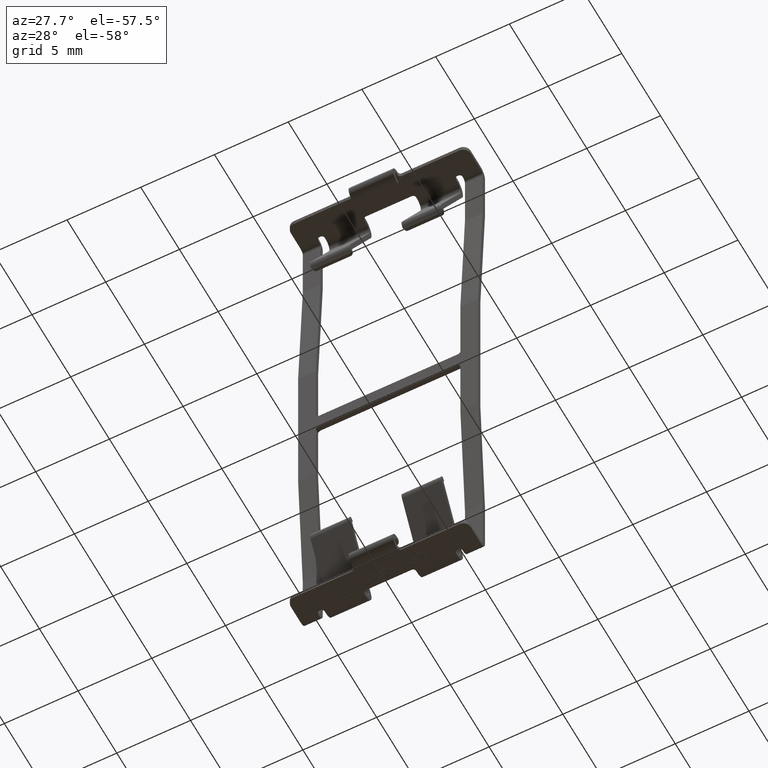
[diagram: clean part render]
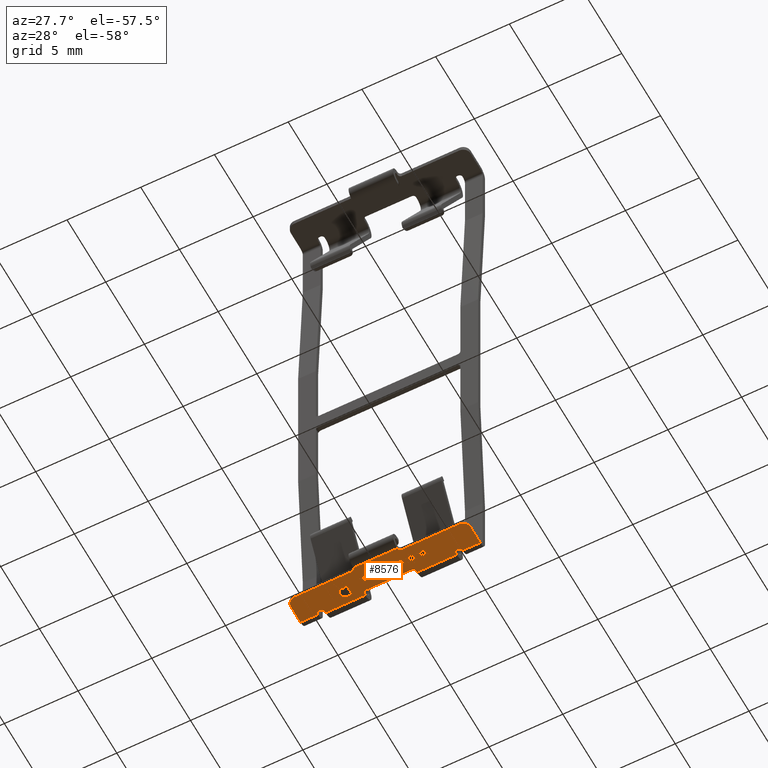
[diagram: same view with one face highlighted and labeled with its STEP entity id]
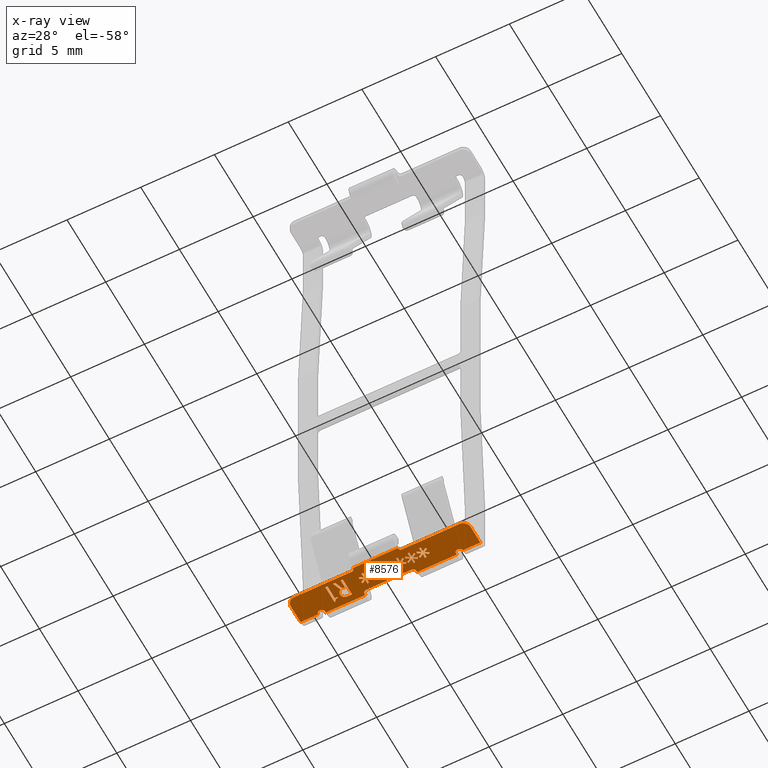
[diagram: x-ray of the same camera — body ghosted, the highlighted face saturated]
A machine part, auxiliary view. The second image highlights one B-rep face of the part: STEP entity #8576.
The next image is the same camera in x-ray: the body ghosted, the highlighted face saturated — about 0% of this face is hidden behind the body in this view.
In plain terms, the highlighted planar face has unit normal (0, -0, 1).
Its self-contained STEP definition (entity closure, byte-faithful):
#6 = VERTEX_POINT ( 'NONE', #1876 ) ;
#9 = ORIENTED_EDGE ( 'NONE', *, *, #1148, .T. ) ;
#12 = CARTESIAN_POINT ( 'NONE',  ( 6.099999999999998757, 2.250000000000001776, -42.04999999999999716 ) ) ;
#21 = ORIENTED_EDGE ( 'NONE', *, *, #3144, .T. ) ;
#36 = EDGE_CURVE ( 'NONE', #5621, #4051, #8908, .T. ) ;
#44 = LINE ( 'NONE', #870, #5824 ) ;
#55 = DIRECTION ( 'NONE',  ( 1.000000000000000000, 0.0000000000000000000, 0.0000000000000000000 ) ) ;
#56 = CARTESIAN_POINT ( 'NONE',  ( -2.436271186440676750, 0.7437193663245598163, -42.05000000000000426 ) ) ;
#64 = CARTESIAN_POINT ( 'NONE',  ( 1.208474576271186596, 1.670725016042073685, -42.04999999999999716 ) ) ;
#94 = DIRECTION ( 'NONE',  ( -0.4856429311786328307, 0.8741572761215373744, 0.0000000000000000000 ) ) ;
#114 = AXIS2_PLACEMENT_3D ( 'NONE', #3165, #9165, #469 ) ;
#123 = EDGE_CURVE ( 'NONE', #9809, #3460, #8651, .T. ) ;
#130 = CARTESIAN_POINT ( 'NONE',  ( 6.099999999999998757, 0.2999999999999877764, -42.05000000000000426 ) ) ;
#164 = CARTESIAN_POINT ( 'NONE',  ( -1.134576271186440222, 0.8958097618047856647, -42.05000000000000426 ) ) ;
#166 = CARTESIAN_POINT ( 'NONE',  ( 1.879661016949152996, 1.377843660109870472, -42.04999999999999716 ) ) ;
#171 = CARTESIAN_POINT ( 'NONE',  ( -1.097966101694914709, 1.292419931296311386, -42.04999999999999716 ) ) ;
#187 = ORIENTED_EDGE ( 'NONE', *, *, #5849, .T. ) ;
#202 = CARTESIAN_POINT ( 'NONE',  ( 1.208474576271186596, 0.8958097618047856647, -42.05000000000000426 ) ) ;
#206 = CARTESIAN_POINT ( 'NONE',  ( 6.099999999999998757, 1.000000000000000888, -42.05000000000000426 ) ) ;
#210 = LINE ( 'NONE', #2686, #7921 ) ;
#236 = EDGE_CURVE ( 'NONE', #2231, #8579, #7368, .T. ) ;
#237 = CARTESIAN_POINT ( 'NONE',  ( 0.6654237288135599337, 1.536487727906480805, -42.04999999999999716 ) ) ;
#249 = CARTESIAN_POINT ( 'NONE',  ( -2.745423728813558117, 1.933097897398006193, -42.04999999999999716 ) ) ;
#266 = VERTEX_POINT ( 'NONE', #4086 ) ;
#284 = ORIENTED_EDGE ( 'NONE', *, *, #6759, .T. ) ;
#288 = ORIENTED_EDGE ( 'NONE', *, *, #2818, .T. ) ;
#291 = EDGE_CURVE ( 'NONE', #9540, #7575, #1077, .T. ) ;
#309 = EDGE_CURVE ( 'NONE', #2846, #9745, #2424, .T. ) ;
#319 = VECTOR ( 'NONE', #6618, 1000.000000000000000 ) ;
#320 = CARTESIAN_POINT ( 'NONE',  ( 0.7874576271186440879, 1.426657219431904267, -42.04999999999999716 ) ) ;
#321 = VECTOR ( 'NONE', #6553, 1000.000000000000114 ) ;
#329 = LINE ( 'NONE', #7703, #5965 ) ;
#334 = CIRCLE ( 'NONE', #8262, 0.2000000000000000944 ) ;
#335 = CARTESIAN_POINT ( 'NONE',  ( -3.350937765336180707, 1.764654673710897903, -42.04999999999999716 ) ) ;
#336 = DIRECTION ( 'NONE',  ( -0.4856429311786321645, -0.8741572761215377074, 0.0000000000000000000 ) ) ;
#337 = CARTESIAN_POINT ( 'NONE',  ( -0.05457627118644000491, 1.426657219431904489, -42.04999999999999716 ) ) ;
#357 = EDGE_CURVE ( 'NONE', #10347, #6203, #10593, .T. ) ;
#360 = LINE ( 'NONE', #4693, #9484 ) ;
#377 = CARTESIAN_POINT ( 'NONE',  ( 2.660677966101695269, 1.377843660109870472, -42.04999999999999716 ) ) ;
#399 = CARTESIAN_POINT ( 'NONE',  ( -3.055600825989874370, 1.739140917911363271, -42.04999999999998295 ) ) ;
#401 = CARTESIAN_POINT ( 'NONE',  ( 1.977288135593220364, 1.377843660109870472, -42.04999999999999716 ) ) ;
#402 = CARTESIAN_POINT ( 'NONE',  ( 2.349491525423729410, 1.158182643160718062, -42.04999999999999716 ) ) ;
#412 = CARTESIAN_POINT ( 'NONE',  ( -3.498656427870805441, 1.828700664382126861, -42.04999999999999716 ) ) ;
#414 = CARTESIAN_POINT ( 'NONE',  ( -0.8355932203389826451, 1.426657219431904489, -42.04999999999999716 ) ) ;
#418 = VERTEX_POINT ( 'NONE', #8002 ) ;
#419 = CARTESIAN_POINT ( 'NONE',  ( -0.8355932203389826451, 1.158182643160718062, -42.04999999999999716 ) ) ;
#423 = EDGE_CURVE ( 'NONE', #8579, #3563, #1622, .T. ) ;
#426 = ORIENTED_EDGE ( 'NONE', *, *, #8137, .T. ) ;
#428 = ORIENTED_EDGE ( 'NONE', *, *, #4886, .T. ) ;
#435 = CARTESIAN_POINT ( 'NONE',  ( -0.8966101694915251663, 1.536487727906480805, -42.04999999999999716 ) ) ;
#461 = VECTOR ( 'NONE', #2149, 1000.000000000000000 ) ;
#467 = CARTESIAN_POINT ( 'NONE',  ( 2.227457627118644368, 1.048352134686141746, -42.04999999999999716 ) ) ;
#469 = DIRECTION ( 'NONE',  ( 0.0000000000000000000, -1.000000000000000000, 0.0000000000000000000 ) ) ;
#498 = CARTESIAN_POINT ( 'NONE',  ( -2.885762711864405361, 1.310725016042073809, -42.04999999999999716 ) ) ;
#504 = DIRECTION ( 'NONE',  ( 0.04163054471218213121, -0.9991330730923519976, 0.0000000000000000000 ) ) ;
#531 = DIRECTION ( 'NONE',  ( -0.4856429311786321645, -0.8741572761215377074, 0.0000000000000000000 ) ) ;
#533 = CARTESIAN_POINT ( 'NONE',  ( 0.7874576271186440879, 1.158182643160717840, -42.04999999999999716 ) ) ;
#538 = CARTESIAN_POINT ( 'NONE',  ( 2.288474576271186667, 1.158182643160718062, -42.04999999999999716 ) ) ;
#548 = ORIENTED_EDGE ( 'NONE', *, *, #6614, .T. ) ;
#553 = DIRECTION ( 'NONE',  ( 0.04163054471218120139, -0.9991330730923518866, 0.0000000000000000000 ) ) ;
#600 = CARTESIAN_POINT ( 'NONE',  ( 0.6654237288135599337, 1.048352134686141746, -42.04999999999999716 ) ) ;
#609 = VECTOR ( 'NONE', #5895, 1000.000000000000000 ) ;
#641 = EDGE_CURVE ( 'NONE', #7507, #7720, #4349, .T. ) ;
#652 = VERTEX_POINT ( 'NONE', #11252 ) ;
#668 = VERTEX_POINT ( 'NONE', #7640 ) ;
#672 = LINE ( 'NONE', #8487, #1503 ) ;
#681 = EDGE_CURVE ( 'NONE', #5495, #7416, #9308, .T. ) ;
#682 = ORIENTED_EDGE ( 'NONE', *, *, #9459, .T. ) ;
#690 = DIRECTION ( 'NONE',  ( 0.4856429311786314429, -0.8741572761215381515, 0.0000000000000000000 ) ) ;
#695 = DIRECTION ( 'NONE',  ( 1.000000000000000000, 0.0000000000000000000, 0.0000000000000000000 ) ) ;
#702 = CARTESIAN_POINT ( 'NONE',  ( -1.256610169491525042, 1.670725016042073907, -42.04999999999999716 ) ) ;
#709 = DIRECTION ( 'NONE',  ( -0.8902481629773386640, 0.4554758043139874868, 0.0000000000000000000 ) ) ;
#710 = CARTESIAN_POINT ( 'NONE',  ( 2.611864406779661252, 1.292419931296311386, -42.04999999999999716 ) ) ;
#713 = EDGE_CURVE ( 'NONE', #11081, #2877, #5293, .T. ) ;
#716 = ORIENTED_EDGE ( 'NONE', *, *, #5382, .T. ) ;
#718 = VERTEX_POINT ( 'NONE', #702 ) ;
#740 = DIRECTION ( 'NONE',  ( 5.927885630556067483E-19, -3.558434867526609099E-15, 1.000000000000000000 ) ) ;
#746 = ORIENTED_EDGE ( 'NONE', *, *, #2397, .T. ) ;
#766 = CARTESIAN_POINT ( 'NONE',  ( 0.8484745762711864980, 1.048352134686141524, -42.04999999999999716 ) ) ;
#785 = ORIENTED_EDGE ( 'NONE', *, *, #8004, .T. ) ;
#801 = LINE ( 'NONE', #3678, #9869 ) ;
#812 = VECTOR ( 'NONE', #1017, 1000.000000000000000 ) ;
#814 = VECTOR ( 'NONE', #10843, 1000.000000000000227 ) ;
#870 = CARTESIAN_POINT ( 'NONE',  ( 1.989491525423729090, 0.8958097618047856647, -42.05000000000000426 ) ) ;
#872 = DIRECTION ( 'NONE',  ( 0.8445085784496779713, -0.5355420253583317303, 0.0000000000000000000 ) ) ;
#876 = CARTESIAN_POINT ( 'NONE',  ( 2.227457627118644368, 1.536487727906480805, -42.04999999999999716 ) ) ;
#907 = VERTEX_POINT ( 'NONE', #7192 ) ;
#928 = CARTESIAN_POINT ( 'NONE',  ( 2.758305084745762858, 1.377843660109870472, -42.04999999999999716 ) ) ;
#932 = EDGE_CURVE ( 'NONE', #418, #1261, #801, .T. ) ;
#935 = EDGE_CURVE ( 'NONE', #3310, #9215, #7497, .T. ) ;
#951 = LINE ( 'NONE', #8194, #5441 ) ;
#962 = EDGE_CURVE ( 'NONE', #8196, #10671, #5681, .T. ) ;
#963 = CARTESIAN_POINT ( 'NONE',  ( 1.098644067796610058, 1.206996202482751634, -42.04999999999999716 ) ) ;
#972 = EDGE_CURVE ( 'NONE', #3104, #8657, #1607, .T. ) ;
#976 = CARTESIAN_POINT ( 'NONE',  ( 0.8484745762711864980, 1.048352134686141524, -42.04999999999999716 ) ) ;
#986 = CARTESIAN_POINT ( 'NONE',  ( 1.568474576271186915, 1.426657219431904489, -42.04999999999999716 ) ) ;
#994 = AXIS2_PLACEMENT_3D ( 'NONE', #4285, #3299, #10486 ) ;
#1017 = DIRECTION ( 'NONE',  ( -1.000000000000000000, 2.069098918964204402E-17, 5.927885630556810892E-19 ) ) ;
#1018 = VECTOR ( 'NONE', #5867, 1000.000000000000227 ) ;
#1034 = CARTESIAN_POINT ( 'NONE',  ( -0.05457627118644000491, 1.426657219431904489, -42.04999999999999716 ) ) ;
#1043 = LINE ( 'NONE', #3046, #4570 ) ;
#1047 = LINE ( 'NONE', #3857, #6383 ) ;
#1058 = VECTOR ( 'NONE', #6047, 1000.000000000000227 ) ;
#1063 = VERTEX_POINT ( 'NONE', #5573 ) ;
#1065 = CARTESIAN_POINT ( 'NONE',  ( 1.196271186440678092, 1.377843660109870250, -42.04999999999999716 ) ) ;
#1077 = LINE ( 'NONE', #6732, #3542 ) ;
#1093 = CARTESIAN_POINT ( 'NONE',  ( -4.700000000000001066, 2.250000000000001776, -42.04999999999999716 ) ) ;
#1103 = CARTESIAN_POINT ( 'NONE',  ( 2.758305084745762858, 1.377843660109870472, -42.04999999999999716 ) ) ;
#1110 = DIRECTION ( 'NONE',  ( -0.8445085784496776382, -0.5355420253583322854, 0.0000000000000000000 ) ) ;
#1114 = ORIENTED_EDGE ( 'NONE', *, *, #5429, .T. ) ;
#1118 = EDGE_CURVE ( 'NONE', #6713, #4551, #9818, .T. ) ;
#1125 = EDGE_CURVE ( 'NONE', #8471, #6158, #4457, .T. ) ;
#1146 = VERTEX_POINT ( 'NONE', #2290 ) ;
#1148 = EDGE_CURVE ( 'NONE', #4441, #4954, #11107, .T. ) ;
#1158 = VERTEX_POINT ( 'NONE', #11043 ) ;
#1159 = CARTESIAN_POINT ( 'NONE',  ( -3.510925548869143764, 1.842789806645306783, -42.04999999999999005 ) ) ;
#1163 = CARTESIAN_POINT ( 'NONE',  ( -3.479661016949149754, 1.690160044290661467, -42.04999999999999716 ) ) ;
#1168 = LINE ( 'NONE', #6846, #10802 ) ;
#1174 = VECTOR ( 'NONE', #4276, 1000.000000000000000 ) ;
#1180 = LINE ( 'NONE', #10839, #5286 ) ;
#1192 = DIRECTION ( 'NONE',  ( 0.0000000000000000000, -1.000000000000000000, 0.0000000000000000000 ) ) ;
#1193 = VECTOR ( 'NONE', #1405, 1000.000000000000000 ) ;
#1194 = DIRECTION ( 'NONE',  ( -0.03918556669535536857, 0.9992319507315424731, 2.228106236381836957E-14 ) ) ;
#1227 = CARTESIAN_POINT ( 'NONE',  ( 1.629491525423729215, 1.536487727906480805, -42.04999999999999716 ) ) ;
#1230 = CARTESIAN_POINT ( 'NONE',  ( 0.2688135593220345454, 1.292419931296311386, -42.04999999999999716 ) ) ;
#1235 = VERTEX_POINT ( 'NONE', #11082 ) ;
#1236 = CARTESIAN_POINT ( 'NONE',  ( -3.531388627714699080, 1.874998676128975417, -42.04999999999999716 ) ) ;
#1249 = VERTEX_POINT ( 'NONE', #6544 ) ;
#1251 = DIRECTION ( 'NONE',  ( -0.8445085784496777492, -0.5355420253583321744, 0.0000000000000000000 ) ) ;
#1261 = VERTEX_POINT ( 'NONE', #7620 ) ;
#1277 = EDGE_CURVE ( 'NONE', #4510, #3727, #1994, .T. ) ;
#1289 = ORIENTED_EDGE ( 'NONE', *, *, #7247, .T. ) ;
#1307 = EDGE_CURVE ( 'NONE', #7416, #4499, #5669, .T. ) ;
#1311 = CARTESIAN_POINT ( 'NONE',  ( -3.549266512814850394, 1.926123476406810919, -42.05000000000000426 ) ) ;
#1312 = CARTESIAN_POINT ( 'NONE',  ( -3.001918487017964488, 1.397311333777130793, -42.04999999999999716 ) ) ;
#1334 = EDGE_CURVE ( 'NONE', #7001, #2339, #329, .T. ) ;
#1341 = CARTESIAN_POINT ( 'NONE',  ( -3.074448318774700706, 1.644617299726260473, -42.04999999999999716 ) ) ;
#1352 = ORIENTED_EDGE ( 'NONE', *, *, #10243, .T. ) ;
#1354 = CARTESIAN_POINT ( 'NONE',  ( -2.914511062939260100, 1.321839618583348308, -42.04999999999997584 ) ) ;
#1359 = DIRECTION ( 'NONE',  ( 0.8445085784496779713, 0.5355420253583317303, 0.0000000000000000000 ) ) ;
#1367 = VERTEX_POINT ( 'NONE', #10444 ) ;
#1368 = CARTESIAN_POINT ( 'NONE',  ( 1.245084745762712108, 1.292419931296311164, -42.04999999999999716 ) ) ;
#1371 = CARTESIAN_POINT ( 'NONE',  ( -2.987303895769146234, 1.843250163539437825, -42.05000000000000426 ) ) ;
#1394 = CARTESIAN_POINT ( 'NONE',  ( 2.288474576271186667, 1.158182643160718062, -42.04999999999999716 ) ) ;
#1395 = CARTESIAN_POINT ( 'NONE',  ( -3.624067796610166425, 1.933097897398006193, -42.04999999999999716 ) ) ;
#1405 = DIRECTION ( 'NONE',  ( 0.3534005687185765021, 0.9354720936668216025, 1.182028873065377524E-14 ) ) ;
#1427 = DIRECTION ( 'NONE',  ( 0.4856429311786321645, 0.8741572761215377074, 0.0000000000000000000 ) ) ;
#1436 = CARTESIAN_POINT ( 'NONE',  ( -0.3535593220338975606, 1.670725016042073907, -42.04999999999999716 ) ) ;
#1444 = VECTOR ( 'NONE', #2343, 1000.000000000000000 ) ;
#1447 = EDGE_CURVE ( 'NONE', #2589, #10711, #4565, .T. ) ;
#1460 = EDGE_CURVE ( 'NONE', #3540, #8441, #11375, .T. ) ;
#1461 = VECTOR ( 'NONE', #2435, 1000.000000000000000 ) ;
#1498 = CARTESIAN_POINT ( 'NONE',  ( 0.7264406779661023439, 1.426657219431904489, -42.04999999999999716 ) ) ;
#1503 = VECTOR ( 'NONE', #2352, 1000.000000000000227 ) ;
#1510 = ORIENTED_EDGE ( 'NONE', *, *, #5050, .T. ) ;
#1514 = CARTESIAN_POINT ( 'NONE',  ( -2.941945222978227914, 1.339858192461047537, -42.05000000000000426 ) ) ;
#1530 = CARTESIAN_POINT ( 'NONE',  ( -1.555593220338982841, 1.426657219431904489, -42.04999999999999716 ) ) ;
#1556 = DIRECTION ( 'NONE',  ( 0.04163054471218138874, -0.9991330730923518866, 0.0000000000000000000 ) ) ;
#1557 = VERTEX_POINT ( 'NONE', #1103 ) ;
#1564 = CARTESIAN_POINT ( 'NONE',  ( -1.195593220338982743, 0.8958097618047856647, -42.05000000000000426 ) ) ;
#1565 = CARTESIAN_POINT ( 'NONE',  ( -0.7745762711864400130, 1.158182643160718062, -42.04999999999999716 ) ) ;
#1580 = EDGE_LOOP ( 'NONE', ( #6496, #4147, #9088, #6023, #4743, #7262, #548, #3736, #4718, #7531, #4979, #2015, #8936, #7727, #3552, #3834, #7117, #2833 ) ) ;
#1587 = LINE ( 'NONE', #8690, #5280 ) ;
#1593 = CARTESIAN_POINT ( 'NONE',  ( 1.629491525423729215, 1.048352134686141746, -42.04999999999999716 ) ) ;
#1598 = VECTOR ( 'NONE', #5927, 1000.000000000000000 ) ;
#1607 = LINE ( 'NONE', #4393, #8044 ) ;
#1612 = LINE ( 'NONE', #5299, #9471 ) ;
#1617 = VERTEX_POINT ( 'NONE', #7742 ) ;
#1622 = LINE ( 'NONE', #130, #4080 ) ;
#1625 = CARTESIAN_POINT ( 'NONE',  ( -3.044550037051551250, 1.766535200657375793, -42.05000000000001137 ) ) ;
#1632 = DIRECTION ( 'NONE',  ( -0.03918556669535450121, -0.9992319507315424731, -2.228106236381836957E-14 ) ) ;
#1679 = CARTESIAN_POINT ( 'NONE',  ( -4.650000000000000355, 2.250000000000001776, -42.04999999999999716 ) ) ;
#1690 = ORIENTED_EDGE ( 'NONE', *, *, #1447, .T. ) ;
#1704 = ORIENTED_EDGE ( 'NONE', *, *, #7679, .T. ) ;
#1728 = FACE_BOUND ( 'NONE', #3446, .T. ) ;
#1746 = VECTOR ( 'NONE', #2488, 1000.000000000000000 ) ;
#1753 = ORIENTED_EDGE ( 'NONE', *, *, #4387, .T. ) ;
#1760 = LINE ( 'NONE', #9574, #9310 ) ;
#1762 = VECTOR ( 'NONE', #709, 1000.000000000000227 ) ;
#1763 = DIRECTION ( 'NONE',  ( 1.000000000000000000, -2.069098918964204402E-17, -5.927885630556809929E-19 ) ) ;
#1766 = VERTEX_POINT ( 'NONE', #166 ) ;
#1785 = VERTEX_POINT ( 'NONE', #4634 ) ;
#1790 = CARTESIAN_POINT ( 'NONE',  ( 1.098644067796610058, 1.377843660109870250, -42.04999999999999716 ) ) ;
#1792 = VERTEX_POINT ( 'NONE', #206 ) ;
#1793 = VERTEX_POINT ( 'NONE', #9983 ) ;
#1832 = CARTESIAN_POINT ( 'NONE',  ( -1.494576271186440319, 1.048352134686141746, -42.04999999999999716 ) ) ;
#1838 = EDGE_CURVE ( 'NONE', #7606, #3983, #5135, .T. ) ;
#1844 = LINE ( 'NONE', #2994, #3755 ) ;
#1852 = VECTOR ( 'NONE', #3140, 1000.000000000000000 ) ;
#1861 = LINE ( 'NONE', #6585, #5140 ) ;
#1864 = VECTOR ( 'NONE', #7677, 1000.000000000000227 ) ;
#1876 = CARTESIAN_POINT ( 'NONE',  ( -1.750000000000001554, 2.349999999999975664, -42.05000000000001137 ) ) ;
#1875 = VECTOR ( 'NONE', #5748, 1000.000000000000227 ) ;
#1887 = CARTESIAN_POINT ( 'NONE',  ( 0.006440677966102314154, 1.426657219431904489, -42.04999999999999716 ) ) ;
#1902 = DIRECTION ( 'NONE',  ( -0.03918556669535468856, 0.9992319507315424731, 2.228106236381837588E-14 ) ) ;
#1903 = ORIENTED_EDGE ( 'NONE', *, *, #3513, .T. ) ;
#1921 = B_SPLINE_CURVE_WITH_KNOTS ( 'NONE', 3,
 ( #6595, #11099, #10213, #1514, #1354, #10252, #498 ),
 .UNSPECIFIED., .F., .F.,
 ( 4, 1, 1, 1, 4 ),
 ( 0.0000000000000000000, 0.2848158990238124910, 0.5452122583140186496, 0.7810812095135829525, 1.000000000000000000 ),
 .UNSPECIFIED. ) ;
#1949 = EDGE_CURVE ( 'NONE', #4582, #3018, #11361, .T. ) ;
#1955 = DIRECTION ( 'NONE',  ( -1.000000000000000000, 0.0000000000000000000, 0.0000000000000000000 ) ) ;
#1965 = VECTOR ( 'NONE', #2918, 1000.000000000000000 ) ;
#1984 = VECTOR ( 'NONE', #3176, 1000.000000000000114 ) ;
#1986 = DIRECTION ( 'NONE',  ( -0.4856429311786314429, 0.8741572761215381515, 0.0000000000000000000 ) ) ;
#1994 = LINE ( 'NONE', #10325, #1461 ) ;
#1997 = LINE ( 'NONE', #710, #6393 ) ;
#2007 = EDGE_CURVE ( 'NONE', #3727, #907, #6487, .T. ) ;
#2015 = ORIENTED_EDGE ( 'NONE', *, *, #4424, .T. ) ;
#2018 = CARTESIAN_POINT ( 'NONE',  ( 1.446440677966101651, 1.048352134686141524, -42.04999999999999716 ) ) ;
#2024 = LINE ( 'NONE', #3277, #8354 ) ;
#2026 = CARTESIAN_POINT ( 'NONE',  ( -2.757866437613520461, 1.932786893207792511, -42.04999999999999716 ) ) ;
#2033 = VECTOR ( 'NONE', #9985, 1000.000000000000227 ) ;
#2080 = EDGE_CURVE ( 'NONE', #4468, #10347, #5397, .T. ) ;
#2081 = CARTESIAN_POINT ( 'NONE',  ( 1.499999999999998668, 0.2999999999999877764, -42.05000000000000426 ) ) ;
#2088 = VERTEX_POINT ( 'NONE', #3198 ) ;
#2101 = ORIENTED_EDGE ( 'NONE', *, *, #2007, .T. ) ;
#2115 = CARTESIAN_POINT ( 'NONE',  ( 0.06745762711864468353, 1.536487727906480805, -42.04999999999999716 ) ) ;
#2118 = VERTEX_POINT ( 'NONE', #1565 ) ;
#2148 = VECTOR ( 'NONE', #10879, 1000.000000000000000 ) ;
#2149 = DIRECTION ( 'NONE',  ( -0.8445085784496777492, 0.5355420253583321744, 0.0000000000000000000 ) ) ;
#2183 = ORIENTED_EDGE ( 'NONE', *, *, #9187, .T. ) ;
#2184 = DIRECTION ( 'NONE',  ( 1.000000000000000000, 0.0000000000000000000, 0.0000000000000000000 ) ) ;
#2197 = CARTESIAN_POINT ( 'NONE',  ( -2.958983050847455942, 0.7437193663245598163, -42.05000000000000426 ) ) ;
#2214 = DIRECTION ( 'NONE',  ( 0.8445085784496779713, -0.5355420253583317303, 0.0000000000000000000 ) ) ;
#2216 = ORIENTED_EDGE ( 'NONE', *, *, #4479, .T. ) ;
#2224 = VERTEX_POINT ( 'NONE', #10943 ) ;
#2231 = VERTEX_POINT ( 'NONE', #10904 ) ;
#2242 = ORIENTED_EDGE ( 'NONE', *, *, #4564, .T. ) ;
#2246 = LINE ( 'NONE', #5514, #1965 ) ;
#2252 = VECTOR ( 'NONE', #5911, 1000.000000000000000 ) ;
#2264 = EDGE_CURVE ( 'NONE', #718, #9697, #9166, .T. ) ;
#2265 = CARTESIAN_POINT ( 'NONE',  ( -1.256610169491525042, 1.670725016042073907, -42.04999999999999716 ) ) ;
#2272 = DIRECTION ( 'NONE',  ( -0.4856429311786328307, -0.8741572761215373744, 0.0000000000000000000 ) ) ;
#2283 = VECTOR ( 'NONE', #4466, 1000.000000000000000 ) ;
#2290 = CARTESIAN_POINT ( 'NONE',  ( 0.4274576271186447118, 1.670725016042073907, -42.04999999999999716 ) ) ;
#2292 = VERTEX_POINT ( 'NONE', #6683 ) ;
#2313 = VECTOR ( 'NONE', #690, 1000.000000000000227 ) ;
#2316 = CARTESIAN_POINT ( 'NONE',  ( 0.3054237288135598360, 1.670725016042073907, -42.04999999999999716 ) ) ;
#2318 = ORIENTED_EDGE ( 'NONE', *, *, #9612, .T. ) ;
#2321 = ORIENTED_EDGE ( 'NONE', *, *, #8834, .T. ) ;
#2339 = VERTEX_POINT ( 'NONE', #6563 ) ;
#2343 = DIRECTION ( 'NONE',  ( 2.069098918964203786E-17, 1.000000000000000000, 3.558434867526609099E-15 ) ) ;
#2352 = DIRECTION ( 'NONE',  ( -0.4856429311786314429, 0.8741572761215381515, 0.0000000000000000000 ) ) ;
#2354 = EDGE_CURVE ( 'NONE', #10696, #7606, #4470, .T. ) ;
#2363 = DIRECTION ( 'NONE',  ( -0.4856429311786314429, -0.8741572761215381515, 0.0000000000000000000 ) ) ;
#2369 = ORIENTED_EDGE ( 'NONE', *, *, #4977, .T. ) ;
#2375 = LINE ( 'NONE', #6408, #8289 ) ;
#2397 = EDGE_CURVE ( 'NONE', #9065, #10506, #5428, .T. ) ;
#2413 = VECTOR ( 'NONE', #3410, 1000.000000000000114 ) ;
#2416 = LINE ( 'NONE', #5874, #1762 ) ;
#2423 = CARTESIAN_POINT ( 'NONE',  ( 6.099999999999998757, 2.250000000000001776, -42.04999999999999716 ) ) ;
#2424 = LINE ( 'NONE', #5083, #10312 ) ;
#2429 = CIRCLE ( 'NONE', #9600, 0.2000000000000000944 ) ;
#2435 = DIRECTION ( 'NONE',  ( 1.000000000000000000, -2.069098918964204402E-17, -5.927885630556810892E-19 ) ) ;
#2448 = VERTEX_POINT ( 'NONE', #2454 ) ;
#2454 = CARTESIAN_POINT ( 'NONE',  ( -3.074915254237286621, 1.609708066889531608, -42.04999999999999716 ) ) ;
#2471 = VERTEX_POINT ( 'NONE', #3276 ) ;
#2474 = CARTESIAN_POINT ( 'NONE',  ( -1.494576271186440319, 1.048352134686141746, -42.04999999999999716 ) ) ;
#2488 = DIRECTION ( 'NONE',  ( 0.8902481629773387750, -0.4554758043139872647, 0.0000000000000000000 ) ) ;
#2520 = VECTOR ( 'NONE', #3842, 1000.000000000000000 ) ;
#2538 = VERTEX_POINT ( 'NONE', #10499 ) ;
#2540 = VECTOR ( 'NONE', #695, 1000.000000000000000 ) ;
#2547 = VERTEX_POINT ( 'NONE', #4367 ) ;
#2558 = CARTESIAN_POINT ( 'NONE',  ( 1.049830508474576263, 1.292419931296311164, -42.04999999999999716 ) ) ;
#2589 = VERTEX_POINT ( 'NONE', #9641 ) ;
#2590 = EDGE_CURVE ( 'NONE', #2538, #10433, #2955, .T. ) ;
#2615 = ORIENTED_EDGE ( 'NONE', *, *, #1307, .T. ) ;
#2618 = ORIENTED_EDGE ( 'NONE', *, *, #5581, .T. ) ;
#2619 = CARTESIAN_POINT ( 'NONE',  ( -2.745423728813558117, 1.933097897398006193, -42.04999999999999716 ) ) ;
#2658 = FACE_BOUND ( 'NONE', #8495, .T. ) ;
#2659 = LINE ( 'NONE', #5855, #4688 ) ;
#2679 = EDGE_CURVE ( 'NONE', #6019, #7542, #3386, .T. ) ;
#2686 = CARTESIAN_POINT ( 'NONE',  ( 2.349491525423729410, 1.426657219431904489, -42.04999999999999716 ) ) ;
#2703 = VECTOR ( 'NONE', #7434, 1000.000000000000114 ) ;
#2718 = CARTESIAN_POINT ( 'NONE',  ( 3.069491525423729161, 1.426657219431904489, -42.04999999999999716 ) ) ;
#2720 = VECTOR ( 'NONE', #6981, 1000.000000000000000 ) ;
#2735 = ORIENTED_EDGE ( 'NONE', *, *, #3931, .T. ) ;
#2737 = CARTESIAN_POINT ( 'NONE',  ( -1.555593220338982841, 1.426657219431904489, -42.04999999999999716 ) ) ;
#2744 = ORIENTED_EDGE ( 'NONE', *, *, #4020, .T. ) ;
#2750 = EDGE_CURVE ( 'NONE', #4755, #10237, #8888, .T. ) ;
#2753 = CARTESIAN_POINT ( 'NONE',  ( 1.629491525423729215, 1.048352134686141746, -42.04999999999999716 ) ) ;
#2767 = VERTEX_POINT ( 'NONE', #1887 ) ;
#2770 = ORIENTED_EDGE ( 'NONE', *, *, #36, .T. ) ;
#2788 = VECTOR ( 'NONE', #7491, 1000.000000000000227 ) ;
#2792 = VECTOR ( 'NONE', #2272, 1000.000000000000114 ) ;
#2795 = CARTESIAN_POINT ( 'NONE',  ( -0.7135593220338976028, 1.536487727906480805, -42.04999999999999716 ) ) ;
#2799 = LINE ( 'NONE', #7797, #1058 ) ;
#2803 = LINE ( 'NONE', #2897, #6651 ) ;
#2814 = VECTOR ( 'NONE', #2841, 1000.000000000000227 ) ;
#2818 = EDGE_CURVE ( 'NONE', #6581, #7580, #6116, .T. ) ;
#2833 = ORIENTED_EDGE ( 'NONE', *, *, #10774, .T. ) ;
#2838 = CARTESIAN_POINT ( 'NONE',  ( 0.7264406779661023439, 1.158182643160718062, -42.04999999999999716 ) ) ;
#2841 = DIRECTION ( 'NONE',  ( 0.8902481629773386640, -0.4554758043139874868, 0.0000000000000000000 ) ) ;
#2846 = VERTEX_POINT ( 'NONE', #1227 ) ;
#2848 = EDGE_CURVE ( 'NONE', #1792, #4375, #8876, .T. ) ;
#2859 = ORIENTED_EDGE ( 'NONE', *, *, #6449, .T. ) ;
#2860 = CARTESIAN_POINT ( 'NONE',  ( -2.817962376414564041, 1.927607013131966029, -42.05000000000000426 ) ) ;
#2863 = DIRECTION ( 'NONE',  ( 2.069098918964202245E-17, 1.000000000000000000, -2.313548998080448743E-14 ) ) ;
#2869 = DIRECTION ( 'NONE',  ( 5.927885630556067483E-19, -3.558434867526609099E-15, 1.000000000000000000 ) ) ;
#2877 = VERTEX_POINT ( 'NONE', #6582 ) ;
#2885 = CARTESIAN_POINT ( 'NONE',  ( 3.008474576271186862, 1.536487727906480805, -42.04999999999999716 ) ) ;
#2897 = CARTESIAN_POINT ( 'NONE',  ( 2.648474576271186542, 1.670725016042073907, -42.04999999999999716 ) ) ;
#2918 = DIRECTION ( 'NONE',  ( 1.000000000000000000, 0.0000000000000000000, 0.0000000000000000000 ) ) ;
#2923 = LINE ( 'NONE', #9530, #6640 ) ;
#2943 = VECTOR ( 'NONE', #9780, 1000.000000000000114 ) ;
#2946 = CARTESIAN_POINT ( 'NONE',  ( -3.309344456577633764, 1.762376280910061155, -42.04999999999999716 ) ) ;
#2955 = LINE ( 'NONE', #6990, #8045 ) ;
#2968 = VECTOR ( 'NONE', #1955, 1000.000000000000000 ) ;
#2975 = ORIENTED_EDGE ( 'NONE', *, *, #3157, .T. ) ;
#2992 = CARTESIAN_POINT ( 'NONE',  ( -4.450000000000001066, 2.349999999999976996, -42.05000000000001137 ) ) ;
#2994 = CARTESIAN_POINT ( 'NONE',  ( 1.086440677966101775, 1.670725016042073685, -42.04999999999999716 ) ) ;
#3018 = VERTEX_POINT ( 'NONE', #8415 ) ;
#3033 = ORIENTED_EDGE ( 'NONE', *, *, #10508, .T. ) ;
#3038 = EDGE_CURVE ( 'NONE', #9579, #1146, #5541, .T. ) ;
#3041 = DIRECTION ( 'NONE',  ( 5.927885630556067483E-19, -3.558434867526609099E-15, 1.000000000000000000 ) ) ;
#3046 = CARTESIAN_POINT ( 'NONE',  ( 0.7874576271186440879, 1.158182643160717840, -42.04999999999999716 ) ) ;
#3048 = DIRECTION ( 'NONE',  ( -5.927885630556067483E-19, 3.558434867526609099E-15, -1.000000000000000000 ) ) ;
#3050 = EDGE_CURVE ( 'NONE', #7575, #3716, #3520, .T. ) ;
#3057 = EDGE_CURVE ( 'NONE', #5574, #7175, #6388, .T. ) ;
#3060 = CARTESIAN_POINT ( 'NONE',  ( -3.416658676540663464, 1.778753322652009805, -42.05000000000001137 ) ) ;
#3068 = LINE ( 'NONE', #1368, #2788 ) ;
#3077 = ORIENTED_EDGE ( 'NONE', *, *, #10339, .T. ) ;
#3079 = CARTESIAN_POINT ( 'NONE',  ( -6.100000000000001421, 2.250000000000027534, -42.05000000000001137 ) ) ;
#3082 = CARTESIAN_POINT ( 'NONE',  ( 4.700000000000000178, 2.250000000000001776, -42.04999999999999716 ) ) ;
#3089 = CARTESIAN_POINT ( 'NONE',  ( -2.970879753909458021, 1.858663930755535043, -42.04999999999999005 ) ) ;
#3093 = VECTOR ( 'NONE', #4423, 1000.000000000000114 ) ;
#3098 = CARTESIAN_POINT ( 'NONE',  ( 1.196271186440678092, 1.206996202482751634, -42.04999999999999716 ) ) ;
#3104 = VERTEX_POINT ( 'NONE', #7712 ) ;
#3106 = ORIENTED_EDGE ( 'NONE', *, *, #9947, .T. ) ;
#3110 = VECTOR ( 'NONE', #7492, 1000.000000000000000 ) ;
#3117 = CARTESIAN_POINT ( 'NONE',  ( 1.977288135593220364, 1.206996202482751857, -42.04999999999999716 ) ) ;
#3135 = CARTESIAN_POINT ( 'NONE',  ( -3.030919220464016295, 1.791826068273875583, -42.04999999999999716 ) ) ;
#3136 = CARTESIAN_POINT ( 'NONE',  ( 0.4152542372881362076, 1.377843660109870472, -42.04999999999999716 ) ) ;
#3140 = DIRECTION ( 'NONE',  ( -0.8902481629773387750, -0.4554758043139872647, 0.0000000000000000000 ) ) ;
#3144 = EDGE_CURVE ( 'NONE', #10722, #5842, #2799, .T. ) ;
#3155 = EDGE_CURVE ( 'NONE', #4658, #6413, #3916, .T. ) ;
#3157 = EDGE_CURVE ( 'NONE', #1249, #10884, #4853, .T. ) ;
#3162 = CARTESIAN_POINT ( 'NONE',  ( -1.293220338983050555, 1.292419931296311386, -42.04999999999999716 ) ) ;
#3165 = CARTESIAN_POINT ( 'NONE',  ( 1.699999999999998845, 0.2999999999999877764, -42.05000000000000426 ) ) ;
#3174 = CARTESIAN_POINT ( 'NONE',  ( -6.100000000000000533, 2.250000000000001776, -42.04999999999999716 ) ) ;
#3176 = DIRECTION ( 'NONE',  ( 0.8445085784496779713, -0.5355420253583317303, 0.0000000000000000000 ) ) ;
#3190 = VERTEX_POINT ( 'NONE', #9662 ) ;
#3195 = DIRECTION ( 'NONE',  ( 0.4856429311786321645, -0.8741572761215377074, 0.0000000000000000000 ) ) ;
#3196 = EDGE_CURVE ( 'NONE', #8241, #9540, #6996, .T. ) ;
#3198 = CARTESIAN_POINT ( 'NONE',  ( 2.660677966101695269, 1.377843660109870472, -42.04999999999999716 ) ) ;
#3202 = VECTOR ( 'NONE', #7185, 1000.000000000000000 ) ;
#3203 = VECTOR ( 'NONE', #1763, 1000.000000000000000 ) ;
#3204 = CIRCLE ( 'NONE', #11080, 0.2000000000000000944 ) ;
#3211 = CARTESIAN_POINT ( 'NONE',  ( -3.300677966101692284, 1.762250439770887356, -42.04999999999999716 ) ) ;
#3217 = CARTESIAN_POINT ( 'NONE',  ( -4.450000000000001066, 2.250000000000001776, -42.05000000000001137 ) ) ;
#3223 = VECTOR ( 'NONE', #6912, 1000.000000000000000 ) ;
#3240 = EDGE_CURVE ( 'NONE', #2088, #3190, #6814, .T. ) ;
#3259 = EDGE_CURVE ( 'NONE', #2339, #10123, #4462, .T. ) ;
#3264 = CARTESIAN_POINT ( 'NONE',  ( 1.549999999999998490, 2.250000000000001776, -42.04999999999999716 ) ) ;
#3272 = VECTOR ( 'NONE', #9085, 1000.000000000000000 ) ;
#3276 = CARTESIAN_POINT ( 'NONE',  ( -0.4755932203389821589, 1.670725016042073907, -42.04999999999999716 ) ) ;
#3277 = CARTESIAN_POINT ( 'NONE',  ( -0.8355932203389826451, 1.158182643160718062, -42.04999999999999716 ) ) ;
#3280 = CARTESIAN_POINT ( 'NONE',  ( -0.4633898305084738767, 1.206996202482751857, -42.04999999999999716 ) ) ;
#3283 = EDGE_CURVE ( 'NONE', #9382, #10695, #1921, .T. ) ;
#3297 = CARTESIAN_POINT ( 'NONE',  ( 1.568474576271186915, 1.426657219431904489, -42.04999999999999716 ) ) ;
#3299 = DIRECTION ( 'NONE',  ( 5.927885630556067483E-19, -3.558434867526609099E-15, 1.000000000000000000 ) ) ;
#3310 = VERTEX_POINT ( 'NONE', #9311 ) ;
#3312 = CARTESIAN_POINT ( 'NONE',  ( 1.867457627118644492, 1.670725016042073907, -42.04999999999999716 ) ) ;
#3315 = CARTESIAN_POINT ( 'NONE',  ( -3.479661016949149754, 1.690160044290661467, -42.04999999999999716 ) ) ;
#3316 = VERTEX_POINT ( 'NONE', #8467 ) ;
#3327 = DIRECTION ( 'NONE',  ( -0.03918556669535467468, -0.9992319507315424731, -2.228106236381836957E-14 ) ) ;
#3334 = VERTEX_POINT ( 'NONE', #7596 ) ;
#3335 = DIRECTION ( 'NONE',  ( -0.8445085784496776382, 0.5355420253583322854, 0.0000000000000000000 ) ) ;
#3352 = LINE ( 'NONE', #5104, #7068 ) ;
#3362 = VECTOR ( 'NONE', #2363, 1000.000000000000227 ) ;
#3373 = LINE ( 'NONE', #2474, #8166 ) ;
#3386 = LINE ( 'NONE', #4502, #9150 ) ;
#3403 = VECTOR ( 'NONE', #336, 1000.000000000000000 ) ;
#3410 = DIRECTION ( 'NONE',  ( -0.4856429311786328307, 0.8741572761215373744, 0.0000000000000000000 ) ) ;
#3421 = CARTESIAN_POINT ( 'NONE',  ( -0.7745762711864400130, 1.426657219431904489, -42.04999999999999716 ) ) ;
#3446 = EDGE_LOOP ( 'NONE', ( #9144, #9034, #11225, #5799, #7137, #426, #10650, #3033, #2321, #7289, #1510, #7152, #2369, #6411, #3706, #10225, #1704, #5765 ) ) ;
#3460 = VERTEX_POINT ( 'NONE', #9521 ) ;
#3475 = CARTESIAN_POINT ( 'NONE',  ( -3.300677966101692284, 1.690160044290661467, -42.04999999999999716 ) ) ;
#3479 = CARTESIAN_POINT ( 'NONE',  ( -0.5122033898305077271, 1.292419931296311386, -42.04999999999999716 ) ) ;
#3480 = VERTEX_POINT ( 'NONE', #7759 ) ;
#3498 = FACE_OUTER_BOUND ( 'NONE', #4864, .T. ) ;
#3499 = LINE ( 'NONE', #3174, #609 ) ;
#3513 = EDGE_CURVE ( 'NONE', #1367, #1785, #4061, .T. ) ;
#3520 = LINE ( 'NONE', #11206, #11108 ) ;
#3540 = VERTEX_POINT ( 'NONE', #8732 ) ;
#3542 = VECTOR ( 'NONE', #8488, 1000.000000000000000 ) ;
#3552 = ORIENTED_EDGE ( 'NONE', *, *, #2750, .T. ) ;
#3556 = CARTESIAN_POINT ( 'NONE',  ( 0.6654237288135599337, 1.048352134686141746, -42.04999999999999716 ) ) ;
#3563 = VERTEX_POINT ( 'NONE', #5938 ) ;
#3564 = VECTOR ( 'NONE', #1110, 1000.000000000000114 ) ;
#3570 = CARTESIAN_POINT ( 'NONE',  ( -4.900000000000000355, 2.049999999999989164, -42.05000000000000426 ) ) ;
#3574 = CARTESIAN_POINT ( 'NONE',  ( 1.867457627118643826, 1.670725016042073907, -42.04999999999999716 ) ) ;
#3600 = EDGE_CURVE ( 'NONE', #1235, #5526, #9016, .T. ) ;
#3610 = DIRECTION ( 'NONE',  ( 1.000000000000000000, -2.069098918964204402E-17, -5.927885630556809929E-19 ) ) ;
#3615 = LINE ( 'NONE', #12, #8288 ) ;
#3617 = LINE ( 'NONE', #538, #1018 ) ;
#3628 = LINE ( 'NONE', #10966, #5662 ) ;
#3636 = DIRECTION ( 'NONE',  ( 1.000000000000000000, 0.0000000000000000000, 0.0000000000000000000 ) ) ;
#3637 = EDGE_CURVE ( 'NONE', #4239, #7413, #11112, .T. ) ;
#3643 = LINE ( 'NONE', #8607, #6107 ) ;
#3663 = EDGE_CURVE ( 'NONE', #10695, #3104, #4187, .T. ) ;
#3678 = CARTESIAN_POINT ( 'NONE',  ( 2.026101694915254381, 1.292419931296311386, -42.04999999999999716 ) ) ;
#3679 = CARTESIAN_POINT ( 'NONE',  ( -0.4633898305084738767, 1.377843660109870472, -42.04999999999999716 ) ) ;
#3686 = ORIENTED_EDGE ( 'NONE', *, *, #9327, .T. ) ;
#3706 = ORIENTED_EDGE ( 'NONE', *, *, #9068, .T. ) ;
#3716 = VERTEX_POINT ( 'NONE', #5427 ) ;
#3717 = ORIENTED_EDGE ( 'NONE', *, *, #291, .T. ) ;
#3721 = ORIENTED_EDGE ( 'NONE', *, *, #3259, .T. ) ;
#3727 = VERTEX_POINT ( 'NONE', #9995 ) ;
#3732 = EDGE_CURVE ( 'NONE', #10915, #5072, #6246, .T. ) ;
#3733 = DIRECTION ( 'NONE',  ( -2.069098918964203786E-17, -1.000000000000000000, -3.558434867526609099E-15 ) ) ;
#3736 = ORIENTED_EDGE ( 'NONE', *, *, #713, .T. ) ;
#3755 = VECTOR ( 'NONE', #4746, 1000.000000000000114 ) ;
#3792 = DIRECTION ( 'NONE',  ( -1.000000000000000000, 0.0000000000000000000, 0.0000000000000000000 ) ) ;
#3806 = EDGE_CURVE ( 'NONE', #11249, #4632, #1043, .T. ) ;
#3829 = EDGE_CURVE ( 'NONE', #8707, #6698, #5277, .T. ) ;
#3834 = ORIENTED_EDGE ( 'NONE', *, *, #8594, .T. ) ;
#3842 = DIRECTION ( 'NONE',  ( -1.000000000000000000, 0.0000000000000000000, 0.0000000000000000000 ) ) ;
#3848 = ORIENTED_EDGE ( 'NONE', *, *, #6569, .T. ) ;
#3849 = CARTESIAN_POINT ( 'NONE',  ( -2.851924466309786244, 1.919918165398129206, -42.04999999999999005 ) ) ;
#3857 = CARTESIAN_POINT ( 'NONE',  ( 2.770508474576271585, 0.8958097618047856647, -42.05000000000000426 ) ) ;
#3864 = CARTESIAN_POINT ( 'NONE',  ( -3.374224977692436678, 1.768121684500663537, -42.05000000000001137 ) ) ;
#3884 = CARTESIAN_POINT ( 'NONE',  ( 0.8484745762711864980, 1.536487727906480583, -42.04999999999999716 ) ) ;
#3902 = VECTOR ( 'NONE', #7549, 1000.000000000000227 ) ;
#3905 = LINE ( 'NONE', #11244, #1598 ) ;
#3906 = CARTESIAN_POINT ( 'NONE',  ( -3.435963326219362735, 1.785705136669608173, -42.04999999999999716 ) ) ;
#3916 = LINE ( 'NONE', #5179, #7091 ) ;
#3931 = EDGE_CURVE ( 'NONE', #5314, #6789, #3643, .T. ) ;
#3936 = CARTESIAN_POINT ( 'NONE',  ( -0.1155932203389823665, 1.536487727906480805, -42.04999999999999716 ) ) ;
#3948 = CARTESIAN_POINT ( 'NONE',  ( -3.550847457627116288, 1.933097897398006193, -42.04999999999999716 ) ) ;
#3955 = EDGE_CURVE ( 'NONE', #11069, #2088, #2803, .T. ) ;
#3969 = DIRECTION ( 'NONE',  ( 0.8445085784496778603, -0.5355420253583319523, 0.0000000000000000000 ) ) ;
#3983 = VERTEX_POINT ( 'NONE', #8131 ) ;
#3988 = ORIENTED_EDGE ( 'NONE', *, *, #11333, .T. ) ;
#3998 = VERTEX_POINT ( 'NONE', #320 ) ;
#4020 = EDGE_CURVE ( 'NONE', #4551, #2448, #4404, .T. ) ;
#4025 = DIRECTION ( 'NONE',  ( 5.927885630556067483E-19, -3.558434867526609099E-15, 1.000000000000000000 ) ) ;
#4028 = CARTESIAN_POINT ( 'NONE',  ( -1.256610169491525042, 0.8958097618047856647, -42.05000000000000426 ) ) ;
#4044 = CARTESIAN_POINT ( 'NONE',  ( 4.649999999999998579, 2.049999999999989164, -42.05000000000000426 ) ) ;
#4051 = VERTEX_POINT ( 'NONE', #3936 ) ;
#4057 = VECTOR ( 'NONE', #5857, 1000.000000000000227 ) ;
#4061 = LINE ( 'NONE', #9560, #4449 ) ;
#4070 = VECTOR ( 'NONE', #1986, 1000.000000000000227 ) ;
#4080 = VECTOR ( 'NONE', #10656, 1000.000000000000000 ) ;
#4086 = CARTESIAN_POINT ( 'NONE',  ( 0.4274576271186447118, 0.8958097618047856647, -42.05000000000000426 ) ) ;
#4091 = LINE ( 'NONE', #4998, #5871 ) ;
#4098 = EDGE_CURVE ( 'NONE', #9697, #2292, #7325, .T. ) ;
#4116 = CARTESIAN_POINT ( 'NONE',  ( 1.568474576271186915, 1.158182643160718062, -42.04999999999999716 ) ) ;
#4126 = VERTEX_POINT ( 'NONE', #3421 ) ;
#4132 = CARTESIAN_POINT ( 'NONE',  ( -0.4633898305084738767, 1.206996202482751857, -42.04999999999999716 ) ) ;
#4134 = DIRECTION ( 'NONE',  ( 0.0000000000000000000, -1.000000000000000000, 0.0000000000000000000 ) ) ;
#4147 = ORIENTED_EDGE ( 'NONE', *, *, #3240, .T. ) ;
#4173 = EDGE_CURVE ( 'NONE', #2877, #7807, #8921, .T. ) ;
#4183 = DIRECTION ( 'NONE',  ( -0.8902481629773386640, -0.4554758043139874868, 0.0000000000000000000 ) ) ;
#4187 = LINE ( 'NONE', #8880, #2943 ) ;
#4202 = VECTOR ( 'NONE', #4225, 1000.000000000000114 ) ;
#4225 = DIRECTION ( 'NONE',  ( 0.8445085784496779713, 0.5355420253583317303, 0.0000000000000000000 ) ) ;
#4239 = VERTEX_POINT ( 'NONE', #64 ) ;
#4248 = CARTESIAN_POINT ( 'NONE',  ( -3.001936635870886771, 1.828680091208754632, -42.04999999999999716 ) ) ;
#4250 = EDGE_CURVE ( 'NONE', #4051, #9729, #6710, .T. ) ;
#4256 = ORIENTED_EDGE ( 'NONE', *, *, #5139, .T. ) ;
#4261 = DIRECTION ( 'NONE',  ( 5.927885630556067483E-19, -3.558434867526609099E-15, 1.000000000000000000 ) ) ;
#4276 = DIRECTION ( 'NONE',  ( 0.8445085784496779713, 0.5355420253583317303, 0.0000000000000000000 ) ) ;
#4283 = DIRECTION ( 'NONE',  ( 0.8445085784496778603, 0.5355420253583319523, 0.0000000000000000000 ) ) ;
#4285 = CARTESIAN_POINT ( 'NONE',  ( -1.700000000000000622, 0.2999999999999877764, -42.05000000000000426 ) ) ;
#4290 = EDGE_LOOP ( 'NONE', ( #3848, #746, #6864, #3077, #6668, #3717, #7264 ) ) ;
#4301 = DIRECTION ( 'NONE',  ( -1.000000000000000000, 2.069098918964204402E-17, 5.927885630556810892E-19 ) ) ;
#4342 = LINE ( 'NONE', #4348, #9739 ) ;
#4348 = CARTESIAN_POINT ( 'NONE',  ( 1.208474576271186596, 0.8958097618047856647, -42.05000000000000426 ) ) ;
#4349 = LINE ( 'NONE', #11093, #5304 ) ;
#4350 = CARTESIAN_POINT ( 'NONE',  ( -0.4145762711864399708, 0.8958097618047856647, -42.05000000000000426 ) ) ;
#4365 = ORIENTED_EDGE ( 'NONE', *, *, #9104, .T. ) ;
#4367 = CARTESIAN_POINT ( 'NONE',  ( 2.410508474576271709, 1.048352134686141746, -42.04999999999999716 ) ) ;
#4375 = VERTEX_POINT ( 'NONE', #10098 ) ;
#4385 = CARTESIAN_POINT ( 'NONE',  ( -3.624067796610166425, 0.7437193663245598163, -42.05000000000000426 ) ) ;
#4387 = EDGE_CURVE ( 'NONE', #6137, #3998, #8368, .T. ) ;
#4393 = CARTESIAN_POINT ( 'NONE',  ( -3.105423728813557993, 0.7437193663245598163, -42.05000000000000426 ) ) ;
#4404 = B_SPLINE_CURVE_WITH_KNOTS ( 'NONE', 3,
 ( #9291, #4248, #5641, #3135, #1625, #399, #11016, #7752, #1341, #7419, #4840 ),
 .UNSPECIFIED., .F., .F.,
 ( 4, 1, 1, 1, 1, 1, 1, 1, 4 ),
 ( 0.0000000000000000000, 0.1133484353424067254, 0.2281797756289138390, 0.3442311816339712616, 0.4634467026624106145, 0.5882775264586498354, 0.7185109399355885662, 0.8555275573984040260, 1.000000000000000000 ),
 .UNSPECIFIED. ) ;
#4423 = DIRECTION ( 'NONE',  ( 0.4856429311786328307, 0.8741572761215373744, 0.0000000000000000000 ) ) ;
#4424 = EDGE_CURVE ( 'NONE', #5106, #4598, #5578, .T. ) ;
#4429 = FACE_BOUND ( 'NONE', #10634, .T. ) ;
#4440 = CARTESIAN_POINT ( 'NONE',  ( -5.599999999999999645, 1.000000000000000888, -42.05000000000000426 ) ) ;
#4441 = VERTEX_POINT ( 'NONE', #467 ) ;
#4449 = VECTOR ( 'NONE', #1632, 1000.000000000000227 ) ;
#4457 = LINE ( 'NONE', #9019, #11255 ) ;
#4462 = LINE ( 'NONE', #9962, #7788 ) ;
#4466 = DIRECTION ( 'NONE',  ( 1.000000000000000000, 0.0000000000000000000, 0.0000000000000000000 ) ) ;
#4468 = VERTEX_POINT ( 'NONE', #2316 ) ;
#4470 = CIRCLE ( 'NONE', #10824, 0.2000000000000000944 ) ;
#4479 = EDGE_CURVE ( 'NONE', #1261, #6581, #672, .T. ) ;
#4482 = LINE ( 'NONE', #10083, #8205 ) ;
#4483 = VECTOR ( 'NONE', #55, 1000.000000000000000 ) ;
#4499 = VERTEX_POINT ( 'NONE', #1498 ) ;
#4501 = DIRECTION ( 'NONE',  ( 0.8902481629773386640, 0.4554758043139874868, 0.0000000000000000000 ) ) ;
#4502 = CARTESIAN_POINT ( 'NONE',  ( -4.450000000000001066, 2.349999999999976996, -42.05000000000001137 ) ) ;
#4503 = ORIENTED_EDGE ( 'NONE', *, *, #7066, .F. ) ;
#4510 = VERTEX_POINT ( 'NONE', #4044 ) ;
#4520 = VERTEX_POINT ( 'NONE', #10228 ) ;
#4551 = VERTEX_POINT ( 'NONE', #5673 ) ;
#4556 = VECTOR ( 'NONE', #7046, 999.9999999999998863 ) ;
#4564 = EDGE_CURVE ( 'NONE', #8935, #5574, #4091, .T. ) ;
#4565 = LINE ( 'NONE', #6190, #1174 ) ;
#4570 = VECTOR ( 'NONE', #6501, 1000.000000000000000 ) ;
#4581 = LINE ( 'NONE', #1790, #6122 ) ;
#4582 = VERTEX_POINT ( 'NONE', #7665 ) ;
#4594 = EDGE_CURVE ( 'NONE', #9810, #4582, #10606, .T. ) ;
#4598 = VERTEX_POINT ( 'NONE', #5917 ) ;
#4607 = CARTESIAN_POINT ( 'NONE',  ( -2.884300835453909251, 1.909299152881123840, -42.05000000000001847 ) ) ;
#4613 = ORIENTED_EDGE ( 'NONE', *, *, #3600, .T. ) ;
#4625 = DIRECTION ( 'NONE',  ( 0.8902481629773387750, -0.4554758043139872647, 0.0000000000000000000 ) ) ;
#4632 = VERTEX_POINT ( 'NONE', #766 ) ;
#4634 = CARTESIAN_POINT ( 'NONE',  ( 0.3054237288135600026, 0.8958097618047856647, -42.05000000000000426 ) ) ;
#4658 = VERTEX_POINT ( 'NONE', #8598 ) ;
#4662 = VERTEX_POINT ( 'NONE', #11343 ) ;
#4665 = CARTESIAN_POINT ( 'NONE',  ( 4.449999999999999289, 2.349999999999976996, -42.05000000000001137 ) ) ;
#4682 = CARTESIAN_POINT ( 'NONE',  ( 2.660677966101695269, 1.206996202482751857, -42.04999999999999716 ) ) ;
#4688 = VECTOR ( 'NONE', #4892, 1000.000000000000000 ) ;
#4693 = CARTESIAN_POINT ( 'NONE',  ( 0.006440677966102314154, 1.426657219431904489, -42.04999999999999716 ) ) ;
#4700 = CARTESIAN_POINT ( 'NONE',  ( 1.830847457627118979, 1.292419931296311386, -42.04999999999999716 ) ) ;
#4703 = CARTESIAN_POINT ( 'NONE',  ( 0.4274576271186447118, 1.670725016042073907, -42.04999999999999716 ) ) ;
#4706 = VECTOR ( 'NONE', #8330, 1000.000000000000000 ) ;
#4711 = VECTOR ( 'NONE', #3610, 1000.000000000000000 ) ;
#4718 = ORIENTED_EDGE ( 'NONE', *, *, #4173, .T. ) ;
#4725 = VECTOR ( 'NONE', #8805, 1000.000000000000114 ) ;
#4728 = LINE ( 'NONE', #10049, #10304 ) ;
#4743 = ORIENTED_EDGE ( 'NONE', *, *, #7699, .T. ) ;
#4746 = DIRECTION ( 'NONE',  ( 0.04163054471218065322, -0.9991330730923519976, 0.0000000000000000000 ) ) ;
#4755 = VERTEX_POINT ( 'NONE', #9687 ) ;
#4774 = CARTESIAN_POINT ( 'NONE',  ( -3.485020937916154082, 1.815985928253087023, -42.04999999999999716 ) ) ;
#4777 = DIRECTION ( 'NONE',  ( 2.069098918964202245E-17, 1.000000000000000000, -2.313548998080448743E-14 ) ) ;
#4779 = DIRECTION ( 'NONE',  ( -0.8445085784496777492, 0.5355420253583321744, 0.0000000000000000000 ) ) ;
#4804 = DIRECTION ( 'NONE',  ( 0.04163054471218120139, -0.9991330730923518866, 0.0000000000000000000 ) ) ;
#4812 = CARTESIAN_POINT ( 'NONE',  ( -3.453597500206339710, 1.794720704884563256, -42.04999999999999005 ) ) ;
#4815 = EDGE_CURVE ( 'NONE', #3334, #7243, #11135, .T. ) ;
#4840 = CARTESIAN_POINT ( 'NONE',  ( -3.074915254237286621, 1.609708066889531608, -42.04999999999999716 ) ) ;
#4853 = LINE ( 'NONE', #11398, #4725 ) ;
#4855 = LINE ( 'NONE', #8571, #10117 ) ;
#4856 = VECTOR ( 'NONE', #6363, 1000.000000000000227 ) ;
#4864 = EDGE_LOOP ( 'NONE', ( #6622, #11168, #4503, #10866, #284, #7624, #2101, #5643, #8894, #6328, #10992, #7775, #7093, #10665, #8386, #7848, #8715, #9918, #187, #4613, #7567, #10832, #8482, #11167, #7189, #8541 ) ) ;
#4866 = CARTESIAN_POINT ( 'NONE',  ( -1.550000000000000488, 2.049999999999989164, -42.05000000000000426 ) ) ;
#4872 = LINE ( 'NONE', #986, #2814 ) ;
#4878 = CARTESIAN_POINT ( 'NONE',  ( 0.7264406779661023439, 1.426657219431904489, -42.04999999999999716 ) ) ;
#4886 = EDGE_CURVE ( 'NONE', #6413, #1367, #10159, .T. ) ;
#4892 = DIRECTION ( 'NONE',  ( -0.8902481629773387750, -0.4554758043139872647, 0.0000000000000000000 ) ) ;
#4896 = VECTOR ( 'NONE', #10089, 1000.000000000000114 ) ;
#4918 = EDGE_CURVE ( 'NONE', #3480, #6610, #4482, .T. ) ;
#4954 = VERTEX_POINT ( 'NONE', #1394 ) ;
#4977 = EDGE_CURVE ( 'NONE', #10671, #10915, #2024, .T. ) ;
#4979 = ORIENTED_EDGE ( 'NONE', *, *, #11188, .T. ) ;
#4985 = DIRECTION ( 'NONE',  ( -1.000000000000000000, 0.0000000000000000000, 0.0000000000000000000 ) ) ;
#4989 = VECTOR ( 'NONE', #2214, 1000.000000000000000 ) ;
#4998 = CARTESIAN_POINT ( 'NONE',  ( 1.879661016949152996, 1.206996202482751857, -42.04999999999999716 ) ) ;
#5036 = ORIENTED_EDGE ( 'NONE', *, *, #1118, .T. ) ;
#5050 = EDGE_CURVE ( 'NONE', #6158, #8196, #7218, .T. ) ;
#5072 = VERTEX_POINT ( 'NONE', #414 ) ;
#5075 = EDGE_CURVE ( 'NONE', #5746, #2471, #8038, .T. ) ;
#5079 = ORIENTED_EDGE ( 'NONE', *, *, #972, .T. ) ;
#5083 = CARTESIAN_POINT ( 'NONE',  ( 1.629491525423729215, 1.536487727906480805, -42.04999999999999716 ) ) ;
#5093 = CARTESIAN_POINT ( 'NONE',  ( -0.3657627118644060649, 1.377843660109870472, -42.04999999999999716 ) ) ;
#5104 = CARTESIAN_POINT ( 'NONE',  ( -1.134576271186440222, 1.670725016042073907, -42.04999999999999716 ) ) ;
#5106 = VERTEX_POINT ( 'NONE', #8567 ) ;
#5112 = VERTEX_POINT ( 'NONE', #11201 ) ;
#5114 = EDGE_CURVE ( 'NONE', #8109, #2547, #10128, .T. ) ;
#5115 = DIRECTION ( 'NONE',  ( -0.03918556669535536857, 0.9992319507315424731, 2.228106236381836957E-14 ) ) ;
#5119 = DIRECTION ( 'NONE',  ( -0.4856429311786314429, -0.8741572761215381515, 0.0000000000000000000 ) ) ;
#5135 = LINE ( 'NONE', #6390, #3202 ) ;
#5139 = EDGE_CURVE ( 'NONE', #10433, #5495, #10326, .T. ) ;
#5140 = VECTOR ( 'NONE', #9250, 1000.000000000000000 ) ;
#5143 = LINE ( 'NONE', #5625, #2792 ) ;
#5155 = DIRECTION ( 'NONE',  ( 0.0000000000000000000, -1.000000000000000000, 0.0000000000000000000 ) ) ;
#5179 = CARTESIAN_POINT ( 'NONE',  ( 0.006440677966102314154, 1.158182643160718062, -42.04999999999999716 ) ) ;
#5240 = DIRECTION ( 'NONE',  ( 1.000000000000000000, 0.0000000000000000000, 0.0000000000000000000 ) ) ;
#5268 = VECTOR ( 'NONE', #1251, 1000.000000000000000 ) ;
#5277 = LINE ( 'NONE', #435, #10277 ) ;
#5280 = VECTOR ( 'NONE', #9554, 1000.000000000000227 ) ;
#5286 = VECTOR ( 'NONE', #7997, 1000.000000000000227 ) ;
#5293 = LINE ( 'NONE', #5777, #5426 ) ;
#5299 = CARTESIAN_POINT ( 'NONE',  ( -1.244406779661016760, 1.206996202482751857, -42.04999999999999716 ) ) ;
#5304 = VECTOR ( 'NONE', #1427, 1000.000000000000000 ) ;
#5314 = VERTEX_POINT ( 'NONE', #3679 ) ;
#5317 = LINE ( 'NONE', #7369, #814 ) ;
#5366 = CARTESIAN_POINT ( 'NONE',  ( 6.099999999999998757, 2.250000000000001776, -42.04999999999999716 ) ) ;
#5367 = AXIS2_PLACEMENT_3D ( 'NONE', #4440, #9075, #9101 ) ;
#5382 = EDGE_CURVE ( 'NONE', #10884, #3316, #10275, .T. ) ;
#5391 = LINE ( 'NONE', #10928, #321 ) ;
#5397 = LINE ( 'NONE', #9465, #7466 ) ;
#5423 = CARTESIAN_POINT ( 'NONE',  ( -2.751525423728812481, 1.292871908697441174, -42.04999999999999716 ) ) ;
#5425 = ORIENTED_EDGE ( 'NONE', *, *, #3663, .T. ) ;
#5426 = VECTOR ( 'NONE', #10375, 1000.000000000000227 ) ;
#5427 = CARTESIAN_POINT ( 'NONE',  ( -3.624067796610167314, 0.7437193663245598163, -42.05000000000000426 ) ) ;
#5428 = LINE ( 'NONE', #7724, #6274 ) ;
#5429 = EDGE_CURVE ( 'NONE', #1785, #266, #3628, .T. ) ;
#5431 = LINE ( 'NONE', #11035, #1193 ) ;
#5441 = VECTOR ( 'NONE', #9973, 1000.000000000000000 ) ;
#5457 = CARTESIAN_POINT ( 'NONE',  ( 1.446440677966101651, 1.536487727906480583, -42.04999999999999716 ) ) ;
#5495 = VERTEX_POINT ( 'NONE', #2838 ) ;
#5510 = LINE ( 'NONE', #11342, #11352 ) ;
#5514 = CARTESIAN_POINT ( 'NONE',  ( -2.580677966101693421, 0.7437193663245598163, -42.05000000000000426 ) ) ;
#5519 = LINE ( 'NONE', #2885, #5268 ) ;
#5526 = VERTEX_POINT ( 'NONE', #8032 ) ;
#5541 = LINE ( 'NONE', #8370, #4057 ) ;
#5542 = LINE ( 'NONE', #8390, #1875 ) ;
#5546 = DIRECTION ( 'NONE',  ( -0.8902481629773386640, 0.4554758043139874868, 0.0000000000000000000 ) ) ;
#5573 = CARTESIAN_POINT ( 'NONE',  ( -5.599999999999999645, 0.5000000000000004441, -42.05000000000000426 ) ) ;
#5574 = VERTEX_POINT ( 'NONE', #9043 ) ;
#5578 = LINE ( 'NONE', #9084, #2033 ) ;
#5581 = EDGE_CURVE ( 'NONE', #2448, #9382, #6333, .T. ) ;
#5585 = CARTESIAN_POINT ( 'NONE',  ( -3.300677966101692284, 1.762250439770887356, -42.04999999999999716 ) ) ;
#5621 = VERTEX_POINT ( 'NONE', #337 ) ;
#5625 = CARTESIAN_POINT ( 'NONE',  ( -1.494576271186440319, 1.536487727906480805, -42.04999999999999716 ) ) ;
#5632 = ORIENTED_EDGE ( 'NONE', *, *, #123, .T. ) ;
#5638 = DIRECTION ( 'NONE',  ( 1.000000000000000000, 0.0000000000000000000, 0.0000000000000000000 ) ) ;
#5641 = CARTESIAN_POINT ( 'NONE',  ( -3.014706456013695135, 1.815009875508420967, -42.05000000000000426 ) ) ;
#5643 = ORIENTED_EDGE ( 'NONE', *, *, #10350, .F. ) ;
#5653 = CARTESIAN_POINT ( 'NONE',  ( -3.396226172220762951, 1.772389549809022524, -42.04999999999998295 ) ) ;
#5657 = VECTOR ( 'NONE', #5240, 1000.000000000000000 ) ;
#5662 = VECTOR ( 'NONE', #5638, 1000.000000000000000 ) ;
#5668 = CARTESIAN_POINT ( 'NONE',  ( -1.750000000000000666, 2.349999999999976996, -42.05000000000001137 ) ) ;
#5669 = LINE ( 'NONE', #8682, #8875 ) ;
#5671 = CARTESIAN_POINT ( 'NONE',  ( 2.349491525423729410, 1.426657219431904489, -42.04999999999999716 ) ) ;
#5673 = CARTESIAN_POINT ( 'NONE',  ( -2.995593220338982121, 1.835470778753938381, -42.05000000000000426 ) ) ;
#5676 = VECTOR ( 'NONE', #7646, 1000.000000000000000 ) ;
#5681 = LINE ( 'NONE', #9743, #3093 ) ;
#5700 = LINE ( 'NONE', #2795, #3403 ) ;
#5746 = VERTEX_POINT ( 'NONE', #1436 ) ;
#5748 = DIRECTION ( 'NONE',  ( 0.04163054471218138874, 0.9991330730923518866, 0.0000000000000000000 ) ) ;
#5755 = CARTESIAN_POINT ( 'NONE',  ( -0.8966101694915251663, 1.536487727906480805, -42.04999999999999716 ) ) ;
#5765 = ORIENTED_EDGE ( 'NONE', *, *, #6037, .T. ) ;
#5777 = CARTESIAN_POINT ( 'NONE',  ( 2.660677966101695269, 1.206996202482751857, -42.04999999999999716 ) ) ;
#5781 = CARTESIAN_POINT ( 'NONE',  ( 1.147457627118644075, 0.8958097618047856647, -42.05000000000000426 ) ) ;
#5799 = ORIENTED_EDGE ( 'NONE', *, *, #4594, .T. ) ;
#5808 = CARTESIAN_POINT ( 'NONE',  ( -0.3657627118644060649, 1.206996202482751857, -42.04999999999999716 ) ) ;
#5810 = CARTESIAN_POINT ( 'NONE',  ( -3.550847457627116288, 1.933097897398006193, -42.04999999999999716 ) ) ;
#5811 = LINE ( 'NONE', #2423, #1444 ) ;
#5824 = VECTOR ( 'NONE', #5115, 1000.000000000000227 ) ;
#5831 = DIRECTION ( 'NONE',  ( -0.8902481629773386640, 0.4554758043139874868, 0.0000000000000000000 ) ) ;
#5841 = ORIENTED_EDGE ( 'NONE', *, *, #10867, .T. ) ;
#5842 = VERTEX_POINT ( 'NONE', #2753 ) ;
#5848 = LINE ( 'NONE', #5668, #3110 ) ;
#5849 = EDGE_CURVE ( 'NONE', #3334, #1235, #3204, .T. ) ;
#5855 = CARTESIAN_POINT ( 'NONE',  ( 1.049830508474576263, 1.292419931296311164, -42.04999999999999716 ) ) ;
#5857 = DIRECTION ( 'NONE',  ( 0.04163054471218138874, 0.9991330730923518866, 0.0000000000000000000 ) ) ;
#5865 = DIRECTION ( 'NONE',  ( 5.927885630556067483E-19, -3.558434867526609099E-15, 1.000000000000000000 ) ) ;
#5867 = DIRECTION ( 'NONE',  ( -0.8902481629773386640, 0.4554758043139874868, 0.0000000000000000000 ) ) ;
#5871 = VECTOR ( 'NONE', #3327, 1000.000000000000227 ) ;
#5874 = CARTESIAN_POINT ( 'NONE',  ( -0.05457627118644000491, 1.158182643160718062, -42.04999999999999716 ) ) ;
#5877 = ORIENTED_EDGE ( 'NONE', *, *, #10414, .T. ) ;
#5895 = DIRECTION ( 'NONE',  ( 2.069098918964203786E-17, 1.000000000000000000, 3.558434867526609099E-15 ) ) ;
#5911 = DIRECTION ( 'NONE',  ( 1.000000000000000000, 0.0000000000000000000, 0.0000000000000000000 ) ) ;
#5917 = CARTESIAN_POINT ( 'NONE',  ( 3.069491525423729161, 1.158182643160718062, -42.04999999999999716 ) ) ;
#5927 = DIRECTION ( 'NONE',  ( -0.8902481629773387750, -0.4554758043139872647, 0.0000000000000000000 ) ) ;
#5932 = DIRECTION ( 'NONE',  ( -1.000000000000000000, 0.0000000000000000000, 0.0000000000000000000 ) ) ;
#5935 = EDGE_CURVE ( 'NONE', #4954, #418, #3617, .T. ) ;
#5938 = CARTESIAN_POINT ( 'NONE',  ( -1.500000000000000444, 0.2999999999999947153, -42.04999999999999716 ) ) ;
#5965 = VECTOR ( 'NONE', #8566, 1000.000000000000114 ) ;
#5975 = CARTESIAN_POINT ( 'NONE',  ( -1.244406779661016760, 1.377843660109870472, -42.04999999999999716 ) ) ;
#5989 = ORIENTED_EDGE ( 'NONE', *, *, #7256, .T. ) ;
#5997 = CARTESIAN_POINT ( 'NONE',  ( 0.3176271186440684513, 1.377843660109870472, -42.04999999999999716 ) ) ;
#6019 = VERTEX_POINT ( 'NONE', #3217 ) ;
#6023 = ORIENTED_EDGE ( 'NONE', *, *, #11056, .T. ) ;
#6037 = EDGE_CURVE ( 'NONE', #5112, #718, #3352, .T. ) ;
#6038 = CARTESIAN_POINT ( 'NONE',  ( 1.989491525423729090, 0.8958097618047856647, -42.05000000000000426 ) ) ;
#6042 = AXIS2_PLACEMENT_3D ( 'NONE', #1679, #4261, #5155 ) ;
#6047 = DIRECTION ( 'NONE',  ( 0.4856429311786314429, -0.8741572761215381515, 0.0000000000000000000 ) ) ;
#6059 = CARTESIAN_POINT ( 'NONE',  ( -1.146779661016948726, 1.206996202482751857, -42.04999999999999716 ) ) ;
#6069 = CARTESIAN_POINT ( 'NONE',  ( 1.879661016949152996, 1.206996202482751857, -42.04999999999999716 ) ) ;
#6094 = FACE_BOUND ( 'NONE', #4290, .T. ) ;
#6099 = EDGE_CURVE ( 'NONE', #5526, #6019, #8870, .T. ) ;
#6107 = VECTOR ( 'NONE', #3335, 1000.000000000000114 ) ;
#6116 = LINE ( 'NONE', #10864, #4706 ) ;
#6122 = VECTOR ( 'NONE', #11416, 1000.000000000000000 ) ;
#6137 = VERTEX_POINT ( 'NONE', #8669 ) ;
#6153 = VECTOR ( 'NONE', #6808, 1000.000000000000114 ) ;
#6158 = VERTEX_POINT ( 'NONE', #9226 ) ;
#6160 = ORIENTED_EDGE ( 'NONE', *, *, #3038, .T. ) ;
#6165 = EDGE_CURVE ( 'NONE', #2292, #9810, #5143, .T. ) ;
#6169 = CARTESIAN_POINT ( 'NONE',  ( 2.709491525423729286, 0.8958097618047856647, -42.05000000000000426 ) ) ;
#6184 = VERTEX_POINT ( 'NONE', #10130 ) ;
#6186 = VERTEX_POINT ( 'NONE', #3117 ) ;
#6190 = CARTESIAN_POINT ( 'NONE',  ( -0.7135593220338976028, 1.048352134686141746, -42.04999999999999716 ) ) ;
#6201 = VERTEX_POINT ( 'NONE', #4700 ) ;
#6203 = VERTEX_POINT ( 'NONE', #2115 ) ;
#6216 = EDGE_CURVE ( 'NONE', #7413, #10640, #1844, .T. ) ;
#6225 = EDGE_CURVE ( 'NONE', #9215, #4520, #2923, .T. ) ;
#6246 = LINE ( 'NONE', #171, #10815 ) ;
#6274 = VECTOR ( 'NONE', #6870, 1000.000000000000000 ) ;
#6303 = CARTESIAN_POINT ( 'NONE',  ( -3.074755113986352040, 1.598770806577469727, -42.04999999999999716 ) ) ;
#6317 = EDGE_CURVE ( 'NONE', #10506, #11131, #6371, .T. ) ;
#6320 = ORIENTED_EDGE ( 'NONE', *, *, #1460, .T. ) ;
#6323 = DIRECTION ( 'NONE',  ( 0.8902481629773386640, 0.4554758043139874868, 0.0000000000000000000 ) ) ;
#6325 = EDGE_CURVE ( 'NONE', #1792, #2224, #5811, .T. ) ;
#6328 = ORIENTED_EDGE ( 'NONE', *, *, #2848, .T. ) ;
#6333 = B_SPLINE_CURVE_WITH_KNOTS ( 'NONE', 3,
 ( #8928, #6303, #10835, #7318, #10989, #8385, #10045, #9260, #6479, #1312, #7364 ),
 .UNSPECIFIED., .F., .F.,
 ( 4, 1, 1, 1, 1, 1, 1, 1, 4 ),
 ( 0.0000000000000000000, 0.1370226003061329190, 0.2683380364164331677, 0.3955829287828750429, 0.5192481459716377090, 0.6399163224677396622, 0.7590820382701577440, 0.8793207365850649326, 1.000000000000000000 ),
 .UNSPECIFIED. ) ;
#6341 = EDGE_CURVE ( 'NONE', #10152, #7243, #3499, .T. ) ;
#6355 = EDGE_CURVE ( 'NONE', #10371, #7507, #7896, .T. ) ;
#6363 = DIRECTION ( 'NONE',  ( -0.03918556669535467468, 0.9992319507315424731, 2.228106236381836957E-14 ) ) ;
#6370 = LINE ( 'NONE', #1230, #1852 ) ;
#6371 = LINE ( 'NONE', #3315, #2252 ) ;
#6372 = ORIENTED_EDGE ( 'NONE', *, *, #7769, .T. ) ;
#6380 = EDGE_CURVE ( 'NONE', #8305, #11249, #2659, .T. ) ;
#6383 = VECTOR ( 'NONE', #1194, 1000.000000000000227 ) ;
#6385 = EDGE_CURVE ( 'NONE', #10393, #7001, #8860, .T. ) ;
#6388 = LINE ( 'NONE', #8572, #2540 ) ;
#6390 = CARTESIAN_POINT ( 'NONE',  ( -4.900000000000000355, 2.049999999999989164, -42.05000000000000426 ) ) ;
#6391 = LINE ( 'NONE', #8701, #1746 ) ;
#6393 = VECTOR ( 'NONE', #4183, 1000.000000000000227 ) ;
#6408 = CARTESIAN_POINT ( 'NONE',  ( -0.4755932203389823254, 1.670725016042073907, -42.04999999999999716 ) ) ;
#6411 = ORIENTED_EDGE ( 'NONE', *, *, #3732, .T. ) ;
#6413 = VERTEX_POINT ( 'NONE', #9293 ) ;
#6417 = VECTOR ( 'NONE', #1359, 1000.000000000000000 ) ;
#6438 = CARTESIAN_POINT ( 'NONE',  ( 5.599999999999997868, 1.000000000000000888, -42.05000000000000426 ) ) ;
#6449 = EDGE_CURVE ( 'NONE', #6203, #2767, #6969, .T. ) ;
#6472 = CARTESIAN_POINT ( 'NONE',  ( -3.300677966101692284, 1.690160044290661467, -42.04999999999999716 ) ) ;
#6479 = CARTESIAN_POINT ( 'NONE',  ( -3.014545928656039653, 1.411813381650590893, -42.05000000000000426 ) ) ;
#6487 = CIRCLE ( 'NONE', #9792, 0.2000000000000000944 ) ;
#6496 = ORIENTED_EDGE ( 'NONE', *, *, #3955, .T. ) ;
#6501 = DIRECTION ( 'NONE',  ( 0.4856429311786321645, -0.8741572761215377074, 0.0000000000000000000 ) ) ;
#6513 = VECTOR ( 'NONE', #8780, 1000.000000000000000 ) ;
#6516 = CARTESIAN_POINT ( 'NONE',  ( -2.580677966101693421, 1.292871908697441174, -42.04999999999999716 ) ) ;
#6519 = ORIENTED_EDGE ( 'NONE', *, *, #8150, .T. ) ;
#6527 = LINE ( 'NONE', #10479, #9152 ) ;
#6544 = CARTESIAN_POINT ( 'NONE',  ( 1.507457627118644172, 1.426657219431904267, -42.04999999999999716 ) ) ;
#6553 = DIRECTION ( 'NONE',  ( 0.4856429311786328307, -0.8741572761215373744, 0.0000000000000000000 ) ) ;
#6559 = CARTESIAN_POINT ( 'NONE',  ( -3.546182854814292185, 1.912519757338386084, -42.04999999999999005 ) ) ;
#6563 = CARTESIAN_POINT ( 'NONE',  ( 1.507457627118644172, 1.158182643160717840, -42.04999999999999716 ) ) ;
#6569 = EDGE_CURVE ( 'NONE', #3716, #9065, #8071, .T. ) ;
#6575 = DIRECTION ( 'NONE',  ( -0.8902481629773387750, -0.4554758043139870982, 0.0000000000000000000 ) ) ;
#6581 = VERTEX_POINT ( 'NONE', #876 ) ;
#6582 = CARTESIAN_POINT ( 'NONE',  ( 2.648474576271186542, 0.8958097618047856647, -42.05000000000000426 ) ) ;
#6585 = CARTESIAN_POINT ( 'NONE',  ( 0.7874576271186440879, 1.426657219431904267, -42.04999999999999716 ) ) ;
#6595 = CARTESIAN_POINT ( 'NONE',  ( -2.995593220338981677, 1.390047049940378754, -42.04999999999999716 ) ) ;
#6599 = EDGE_CURVE ( 'NONE', #7519, #9579, #5317, .T. ) ;
#6610 = VERTEX_POINT ( 'NONE', #9154 ) ;
#6612 = ORIENTED_EDGE ( 'NONE', *, *, #10761, .T. ) ;
#6614 = EDGE_CURVE ( 'NONE', #2547, #11081, #7813, .T. ) ;
#6615 = ORIENTED_EDGE ( 'NONE', *, *, #8072, .T. ) ;
#6616 = DIRECTION ( 'NONE',  ( -0.8445085784496775272, -0.5355420253583325074, 0.0000000000000000000 ) ) ;
#6618 = DIRECTION ( 'NONE',  ( -0.8445085784496775272, 0.5355420253583325074, 0.0000000000000000000 ) ) ;
#6619 = EDGE_CURVE ( 'NONE', #4375, #2231, #951, .T. ) ;
#6622 = ORIENTED_EDGE ( 'NONE', *, *, #11281, .T. ) ;
#6640 = VECTOR ( 'NONE', #7605, 1000.000000000000000 ) ;
#6650 = VECTOR ( 'NONE', #1556, 1000.000000000000227 ) ;
#6651 = VECTOR ( 'NONE', #504, 999.9999999999998863 ) ;
#6668 = ORIENTED_EDGE ( 'NONE', *, *, #3196, .T. ) ;
#6677 = LINE ( 'NONE', #5781, #6812 ) ;
#6683 = CARTESIAN_POINT ( 'NONE',  ( -1.494576271186440319, 1.536487727906480805, -42.04999999999999716 ) ) ;
#6698 = VERTEX_POINT ( 'NONE', #7532 ) ;
#6710 = LINE ( 'NONE', #8048, #3564 ) ;
#6713 = VERTEX_POINT ( 'NONE', #2619 ) ;
#6732 = CARTESIAN_POINT ( 'NONE',  ( -3.550847457627116288, 1.933097897398006193, -42.04999999999999716 ) ) ;
#6755 = CARTESIAN_POINT ( 'NONE',  ( 1.977288135593220364, 1.377843660109870472, -42.04999999999999716 ) ) ;
#6759 = EDGE_CURVE ( 'NONE', #9631, #4510, #2429, .T. ) ;
#6761 = ORIENTED_EDGE ( 'NONE', *, *, #309, .T. ) ;
#6789 = VERTEX_POINT ( 'NONE', #9486 ) ;
#6808 = DIRECTION ( 'NONE',  ( 0.8902481629773387750, -0.4554758043139870982, 0.0000000000000000000 ) ) ;
#6812 = VECTOR ( 'NONE', #2184, 1000.000000000000000 ) ;
#6814 = LINE ( 'NONE', #377, #461 ) ;
#6828 = DIRECTION ( 'NONE',  ( 0.04163054471218213121, 0.9991330730923519976, 0.0000000000000000000 ) ) ;
#6846 = CARTESIAN_POINT ( 'NONE',  ( -0.7745762711864400130, 1.158182643160718062, -42.04999999999999716 ) ) ;
#6864 = ORIENTED_EDGE ( 'NONE', *, *, #6317, .T. ) ;
#6870 = DIRECTION ( 'NONE',  ( 0.0000000000000000000, 1.000000000000000000, 0.0000000000000000000 ) ) ;
#6905 = CARTESIAN_POINT ( 'NONE',  ( -0.05457627118644000491, 1.158182643160718062, -42.04999999999999716 ) ) ;
#6912 = DIRECTION ( 'NONE',  ( 0.0000000000000000000, 1.000000000000000000, 0.0000000000000000000 ) ) ;
#6935 = CARTESIAN_POINT ( 'NONE',  ( -1.244406779661016760, 1.206996202482751857, -42.04999999999999716 ) ) ;
#6969 = LINE ( 'NONE', #9386, #9041 ) ;
#6973 = DIRECTION ( 'NONE',  ( 0.4856429311786321645, -0.8741572761215377074, 0.0000000000000000000 ) ) ;
#6981 = DIRECTION ( 'NONE',  ( 1.000000000000000000, 0.0000000000000000000, 0.0000000000000000000 ) ) ;
#6990 = CARTESIAN_POINT ( 'NONE',  ( 0.4152542372881362076, 1.206996202482751857, -42.04999999999999716 ) ) ;
#6994 = CARTESIAN_POINT ( 'NONE',  ( -1.097966101694914709, 1.292419931296311386, -42.04999999999999716 ) ) ;
#6996 = B_SPLINE_CURVE_WITH_KNOTS ( 'NONE', 3,
 ( #5585, #2946, #7362, #335, #3864, #5653, #3060, #3906, #4812, #10939, #4774, #412, #1159, #7394, #1236, #9217, #6559, #1311, #3948 ),
 .UNSPECIFIED., .F., .F.,
 ( 4, 1, 1, 1, 1, 1, 1, 1, 1, 1, 1, 1, 1, 1, 1, 1, 4 ),
 ( 0.0000000000000000000, 0.07817186314923738055, 0.1524920506989956848, 0.2232213431411695370, 0.2905216842100336039, 0.3543716481485835734, 0.4160887536520928576, 0.4753477793928119199, 0.5326860902381452822, 0.5889513466484944670, 0.6447220263106583360, 0.7005919715743520459, 0.7571518982034406431, 0.8149713781348510988, 0.8743082738510037366, 0.9355597532657138338, 1.000000000000000000 ),
 .UNSPECIFIED. ) ;
#7001 = VERTEX_POINT ( 'NONE', #2018 ) ;
#7020 = ORIENTED_EDGE ( 'NONE', *, *, #9593, .T. ) ;
#7033 = CARTESIAN_POINT ( 'NONE',  ( -0.3657627118644060649, 1.206996202482751857, -42.04999999999999716 ) ) ;
#7034 = DIRECTION ( 'NONE',  ( -0.8902481629773386640, 0.4554758043139874868, 0.0000000000000000000 ) ) ;
#7046 = DIRECTION ( 'NONE',  ( 0.04163054471218213121, 0.9991330730923519976, 0.0000000000000000000 ) ) ;
#7066 = EDGE_CURVE ( 'NONE', #1793, #6610, #8785, .T. ) ;
#7068 = VECTOR ( 'NONE', #5932, 1000.000000000000000 ) ;
#7090 = LINE ( 'NONE', #9920, #10704 ) ;
#7091 = VECTOR ( 'NONE', #6973, 1000.000000000000000 ) ;
#7093 = ORIENTED_EDGE ( 'NONE', *, *, #423, .T. ) ;
#7104 = DIRECTION ( 'NONE',  ( 0.8445085784496778603, 0.5355420253583319523, 0.0000000000000000000 ) ) ;
#7116 = CARTESIAN_POINT ( 'NONE',  ( -0.1155932203389823665, 1.048352134686141746, -42.04999999999999716 ) ) ;
#7117 = ORIENTED_EDGE ( 'NONE', *, *, #8443, .T. ) ;
#7129 = EDGE_CURVE ( 'NONE', #10696, #6, #5848, .T. ) ;
#7137 = ORIENTED_EDGE ( 'NONE', *, *, #1949, .T. ) ;
#7147 = CARTESIAN_POINT ( 'NONE',  ( 0.4640677966101701690, 1.292419931296311386, -42.04999999999999716 ) ) ;
#7152 = ORIENTED_EDGE ( 'NONE', *, *, #962, .T. ) ;
#7159 = EDGE_CURVE ( 'NONE', #8657, #3310, #5431, .T. ) ;
#7167 = ORIENTED_EDGE ( 'NONE', *, *, #10085, .T. ) ;
#7170 = CARTESIAN_POINT ( 'NONE',  ( -3.479661016949149754, 0.7437193663245598163, -42.05000000000000426 ) ) ;
#7175 = VERTEX_POINT ( 'NONE', #6038 ) ;
#7180 = LINE ( 'NONE', #4703, #2520 ) ;
#7185 = DIRECTION ( 'NONE',  ( 1.000000000000000000, -2.069098918964204402E-17, -5.927885630556810892E-19 ) ) ;
#7189 = ORIENTED_EDGE ( 'NONE', *, *, #2354, .T. ) ;
#7192 = CARTESIAN_POINT ( 'NONE',  ( 4.900000000000001243, 2.250000000000027534, -42.05000000000001137 ) ) ;
#7195 = LINE ( 'NONE', #9095, #4856 ) ;
#7218 = LINE ( 'NONE', #6059, #7501 ) ;
#7224 = CARTESIAN_POINT ( 'NONE',  ( 1.098644067796610058, 1.206996202482751634, -42.04999999999999716 ) ) ;
#7236 = EDGE_CURVE ( 'NONE', #668, #5621, #1760, .T. ) ;
#7243 = VERTEX_POINT ( 'NONE', #3079 ) ;
#7247 = EDGE_CURVE ( 'NONE', #4499, #7519, #11404, .T. ) ;
#7248 = DIRECTION ( 'NONE',  ( 0.04163054471218138874, 0.9991330730923518866, 0.0000000000000000000 ) ) ;
#7256 = EDGE_CURVE ( 'NONE', #6186, #4441, #6527, .T. ) ;
#7262 = ORIENTED_EDGE ( 'NONE', *, *, #5114, .T. ) ;
#7264 = ORIENTED_EDGE ( 'NONE', *, *, #3050, .T. ) ;
#7276 = ORIENTED_EDGE ( 'NONE', *, *, #7420, .T. ) ;
#7279 = VERTEX_POINT ( 'NONE', #3479 ) ;
#7289 = ORIENTED_EDGE ( 'NONE', *, *, #1125, .T. ) ;
#7293 = CARTESIAN_POINT ( 'NONE',  ( 6.099999999999998757, 2.250000000000001776, -42.04999999999999716 ) ) ;
#7318 = CARTESIAN_POINT ( 'NONE',  ( -3.070306951330874945, 1.546021552830776580, -42.05000000000001137 ) ) ;
#7322 = LINE ( 'NONE', #7224, #8729 ) ;
#7325 = LINE ( 'NONE', #5975, #319 ) ;
#7337 = LINE ( 'NONE', #976, #8317 ) ;
#7362 = CARTESIAN_POINT ( 'NONE',  ( -3.326250423146662527, 1.762621762757388799, -42.04999999999999716 ) ) ;
#7364 = CARTESIAN_POINT ( 'NONE',  ( -2.995593220338981677, 1.390047049940378754, -42.04999999999999716 ) ) ;
#7368 = CIRCLE ( 'NONE', #114, 0.2000000000000000944 ) ;
#7369 = CARTESIAN_POINT ( 'NONE',  ( 0.6654237288135599337, 1.536487727906480805, -42.04999999999999716 ) ) ;
#7373 = EDGE_CURVE ( 'NONE', #9932, #10393, #4342, .T. ) ;
#7394 = CARTESIAN_POINT ( 'NONE',  ( -3.521788088560467322, 1.858254881058741148, -42.05000000000001137 ) ) ;
#7400 = CARTESIAN_POINT ( 'NONE',  ( 2.410508474576271709, 1.048352134686141746, -42.04999999999999716 ) ) ;
#7413 = VERTEX_POINT ( 'NONE', #10759 ) ;
#7416 = VERTEX_POINT ( 'NONE', #7147 ) ;
#7419 = CARTESIAN_POINT ( 'NONE',  ( -3.074756884745220464, 1.621548155972005523, -42.04999999999999716 ) ) ;
#7420 = EDGE_CURVE ( 'NONE', #3316, #4239, #7485, .T. ) ;
#7434 = DIRECTION ( 'NONE',  ( 0.04163054471218065322, -0.9991330730923519976, 0.0000000000000000000 ) ) ;
#7451 = ORIENTED_EDGE ( 'NONE', *, *, #9976, .T. ) ;
#7466 = VECTOR ( 'NONE', #553, 1000.000000000000227 ) ;
#7473 = CIRCLE ( 'NONE', #994, 0.2000000000000000944 ) ;
#7483 = EDGE_CURVE ( 'NONE', #9745, #6201, #4872, .T. ) ;
#7485 = LINE ( 'NONE', #1065, #7918 ) ;
#7488 = EDGE_CURVE ( 'NONE', #6201, #10722, #1180, .T. ) ;
#7491 = DIRECTION ( 'NONE',  ( 0.8902481629773386640, 0.4554758043139874868, 0.0000000000000000000 ) ) ;
#7492 = DIRECTION ( 'NONE',  ( 2.069098918964202245E-17, 1.000000000000000000, -2.313548998080448743E-14 ) ) ;
#7494 = CARTESIAN_POINT ( 'NONE',  ( 0.2688135593220345454, 1.292419931296311386, -42.04999999999999716 ) ) ;
#7497 = LINE ( 'NONE', #5423, #2283 ) ;
#7499 = AXIS2_PLACEMENT_3D ( 'NONE', #7293, #8156, #3733 ) ;
#7501 = VECTOR ( 'NONE', #8632, 1000.000000000000000 ) ;
#7504 = LINE ( 'NONE', #1593, #4202 ) ;
#7507 = VERTEX_POINT ( 'NONE', #7116 ) ;
#7519 = VERTEX_POINT ( 'NONE', #237 ) ;
#7527 = CARTESIAN_POINT ( 'NONE',  ( -1.550000000000000488, 2.250000000000001776, -42.04999999999999716 ) ) ;
#7531 = ORIENTED_EDGE ( 'NONE', *, *, #11144, .T. ) ;
#7532 = CARTESIAN_POINT ( 'NONE',  ( -1.146779661016948726, 1.377843660109870472, -42.04999999999999716 ) ) ;
#7537 = DIRECTION ( 'NONE',  ( 0.8902481629773386640, 0.4554758043139874868, 0.0000000000000000000 ) ) ;
#7542 = VERTEX_POINT ( 'NONE', #2992 ) ;
#7549 = DIRECTION ( 'NONE',  ( -0.03918556669535450121, -0.9992319507315424731, -2.228106236381836957E-14 ) ) ;
#7564 = ORIENTED_EDGE ( 'NONE', *, *, #935, .T. ) ;
#7567 = ORIENTED_EDGE ( 'NONE', *, *, #6099, .T. ) ;
#7575 = VERTEX_POINT ( 'NONE', #1395 ) ;
#7580 = VERTEX_POINT ( 'NONE', #6755 ) ;
#7581 = CARTESIAN_POINT ( 'NONE',  ( 2.227457627118644368, 1.048352134686141746, -42.04999999999999716 ) ) ;
#7593 = LINE ( 'NONE', #1564, #8145 ) ;
#7596 = CARTESIAN_POINT ( 'NONE',  ( -4.900000000000000355, 2.250000000000001776, -42.04999999999999005 ) ) ;
#7601 = LINE ( 'NONE', #3475, #3223 ) ;
#7603 = FACE_BOUND ( 'NONE', #8221, .T. ) ;
#7605 = DIRECTION ( 'NONE',  ( 0.0000000000000000000, -1.000000000000000000, -1.263564013365822208E-14 ) ) ;
#7606 = VERTEX_POINT ( 'NONE', #4866 ) ;
#7618 = LINE ( 'NONE', #8795, #3203 ) ;
#7620 = CARTESIAN_POINT ( 'NONE',  ( 2.288474576271186667, 1.426657219431904489, -42.04999999999999716 ) ) ;
#7624 = ORIENTED_EDGE ( 'NONE', *, *, #1277, .T. ) ;
#7640 = CARTESIAN_POINT ( 'NONE',  ( -0.3169491525423721590, 1.292419931296311386, -42.04999999999999716 ) ) ;
#7646 = DIRECTION ( 'NONE',  ( -1.000000000000000000, 0.0000000000000000000, 0.0000000000000000000 ) ) ;
#7660 = VECTOR ( 'NONE', #94, 1000.000000000000114 ) ;
#7665 = CARTESIAN_POINT ( 'NONE',  ( -1.293220338983050555, 1.292419931296311386, -42.04999999999999716 ) ) ;
#7666 = CARTESIAN_POINT ( 'NONE',  ( 0.3176271186440684513, 1.377843660109870472, -42.04999999999999716 ) ) ;
#7677 = DIRECTION ( 'NONE',  ( 0.04163054471218138874, 0.9991330730923518866, 0.0000000000000000000 ) ) ;
#7679 = EDGE_CURVE ( 'NONE', #6698, #5112, #5542, .T. ) ;
#7690 = CARTESIAN_POINT ( 'NONE',  ( 2.770508474576271585, 1.670725016042073907, -42.04999999999999716 ) ) ;
#7699 = EDGE_CURVE ( 'NONE', #11299, #8109, #1997, .T. ) ;
#7703 = CARTESIAN_POINT ( 'NONE',  ( 1.446440677966101651, 1.048352134686141524, -42.04999999999999716 ) ) ;
#7712 = CARTESIAN_POINT ( 'NONE',  ( -3.105423728813557993, 0.7437193663245598163, -42.05000000000000426 ) ) ;
#7720 = VERTEX_POINT ( 'NONE', #6905 ) ;
#7724 = CARTESIAN_POINT ( 'NONE',  ( -3.479661016949149754, 1.219199592313260361, -42.04999999999999716 ) ) ;
#7727 = ORIENTED_EDGE ( 'NONE', *, *, #8306, .T. ) ;
#7742 = CARTESIAN_POINT ( 'NONE',  ( 1.989491525423729090, 1.670725016042073907, -42.04999999999999716 ) ) ;
#7752 = CARTESIAN_POINT ( 'NONE',  ( -3.070360957774700861, 1.678137254783565346, -42.05000000000000426 ) ) ;
#7759 = CARTESIAN_POINT ( 'NONE',  ( 1.749999999999998890, 2.250000000000001776, -42.05000000000001137 ) ) ;
#7769 = EDGE_CURVE ( 'NONE', #7856, #1766, #9003, .T. ) ;
#7775 = ORIENTED_EDGE ( 'NONE', *, *, #236, .T. ) ;
#7788 = VECTOR ( 'NONE', #5546, 1000.000000000000227 ) ;
#7797 = CARTESIAN_POINT ( 'NONE',  ( 1.568474576271186915, 1.158182643160718062, -42.04999999999999716 ) ) ;
#7801 = CARTESIAN_POINT ( 'NONE',  ( 2.611864406779661252, 1.292419931296311386, -42.04999999999999716 ) ) ;
#7807 = VERTEX_POINT ( 'NONE', #7815 ) ;
#7813 = LINE ( 'NONE', #7400, #4896 ) ;
#7815 = CARTESIAN_POINT ( 'NONE',  ( 2.770508474576271585, 0.8958097618047856647, -42.05000000000000426 ) ) ;
#7848 = ORIENTED_EDGE ( 'NONE', *, *, #10430, .T. ) ;
#7856 = VERTEX_POINT ( 'NONE', #3574 ) ;
#7859 = EDGE_CURVE ( 'NONE', #7542, #6, #8743, .T. ) ;
#7877 = CARTESIAN_POINT ( 'NONE',  ( 1.208474576271186596, 1.670725016042073685, -42.04999999999999716 ) ) ;
#7895 = FACE_BOUND ( 'NONE', #1580, .T. ) ;
#7896 = LINE ( 'NONE', #5808, #4989 ) ;
#7912 = ORIENTED_EDGE ( 'NONE', *, *, #1334, .T. ) ;
#7918 = VECTOR ( 'NONE', #7248, 1000.000000000000227 ) ;
#7921 = VECTOR ( 'NONE', #9756, 1000.000000000000227 ) ;
#7926 = EDGE_CURVE ( 'NONE', #4632, #9841, #7337, .T. ) ;
#7935 = ORIENTED_EDGE ( 'NONE', *, *, #6380, .T. ) ;
#7954 = DIRECTION ( 'NONE',  ( 1.000000000000000000, -2.069098918964204402E-17, -5.927885630556810892E-19 ) ) ;
#7963 = DIRECTION ( 'NONE',  ( -0.03918556669535398079, -0.9992319507315424731, -2.228106236381836957E-14 ) ) ;
#7964 = ORIENTED_EDGE ( 'NONE', *, *, #932, .T. ) ;
#7997 = DIRECTION ( 'NONE',  ( -0.8902481629773386640, -0.4554758043139874868, 0.0000000000000000000 ) ) ;
#7998 = ORIENTED_EDGE ( 'NONE', *, *, #10790, .T. ) ;
#8002 = CARTESIAN_POINT ( 'NONE',  ( 2.026101694915254381, 1.292419931296311386, -42.04999999999999716 ) ) ;
#8004 = EDGE_CURVE ( 'NONE', #266, #2538, #7195, .T. ) ;
#8026 = VECTOR ( 'NONE', #8417, 1000.000000000000000 ) ;
#8032 = CARTESIAN_POINT ( 'NONE',  ( -4.650000000000000355, 2.049999999999989164, -42.05000000000000426 ) ) ;
#8038 = LINE ( 'NONE', #10044, #5676 ) ;
#8042 = EDGE_LOOP ( 'NONE', ( #9132, #5841, #1753, #9688, #7935, #9663, #10343, #3106, #3686, #8115, #8696, #7912, #3721, #7167, #2975, #716, #7276, #10053 ) ) ;
#8044 = VECTOR ( 'NONE', #3636, 1000.000000000000000 ) ;
#8045 = VECTOR ( 'NONE', #10533, 1000.000000000000114 ) ;
#8048 = CARTESIAN_POINT ( 'NONE',  ( -0.1155932203389823665, 1.536487727906480805, -42.04999999999999716 ) ) ;
#8071 = LINE ( 'NONE', #4385, #4483 ) ;
#8072 = EDGE_CURVE ( 'NONE', #3460, #6713, #7090, .T. ) ;
#8080 = ORIENTED_EDGE ( 'NONE', *, *, #3283, .T. ) ;
#8085 = EDGE_CURVE ( 'NONE', #2471, #5314, #2375, .T. ) ;
#8092 = EDGE_CURVE ( 'NONE', #3998, #8305, #1861, .T. ) ;
#8109 = VERTEX_POINT ( 'NONE', #402 ) ;
#8115 = ORIENTED_EDGE ( 'NONE', *, *, #7373, .T. ) ;
#8117 = DIRECTION ( 'NONE',  ( -0.03918556669535398773, -0.9992319507315424731, -2.228106236381837588E-14 ) ) ;
#8128 = EDGE_CURVE ( 'NONE', #9631, #1793, #11234, .T. ) ;
#8131 = CARTESIAN_POINT ( 'NONE',  ( 1.549999999999998490, 2.049999999999989164, -42.05000000000000426 ) ) ;
#8137 = EDGE_CURVE ( 'NONE', #3018, #9890, #5391, .T. ) ;
#8145 = VECTOR ( 'NONE', #10395, 1000.000000000000000 ) ;
#8150 = EDGE_CURVE ( 'NONE', #8683, #4658, #6370, .T. ) ;
#8156 = DIRECTION ( 'NONE',  ( 5.927885630556067483E-19, -3.558434867526609099E-15, 1.000000000000000000 ) ) ;
#8157 = FACE_BOUND ( 'NONE', #9086, .T. ) ;
#8166 = VECTOR ( 'NONE', #4283, 1000.000000000000000 ) ;
#8167 = VECTOR ( 'NONE', #10886, 1000.000000000000000 ) ;
#8177 = VECTOR ( 'NONE', #10194, 1000.000000000000227 ) ;
#8194 = CARTESIAN_POINT ( 'NONE',  ( 6.100011999999998658, 0.5000000000000004441, -42.05000000000000426 ) ) ;
#8196 = VERTEX_POINT ( 'NONE', #10293 ) ;
#8204 = DIRECTION ( 'NONE',  ( -0.4856429311786321645, 0.8741572761215377074, 0.0000000000000000000 ) ) ;
#8205 = VECTOR ( 'NONE', #4777, 1000.000000000000000 ) ;
#8221 = EDGE_LOOP ( 'NONE', ( #11370, #2735, #4365, #682, #3988, #1352, #1690, #7020, #6320, #2318, #8592, #10565, #6612, #11275, #2770, #11207, #11011, #11432 ) ) ;
#8241 = VERTEX_POINT ( 'NONE', #3211 ) ;
#8253 = EDGE_CURVE ( 'NONE', #3190, #8666, #9443, .T. ) ;
#8262 = AXIS2_PLACEMENT_3D ( 'NONE', #3264, #740, #4134 ) ;
#8288 = VECTOR ( 'NONE', #4301, 1000.000000000000000 ) ;
#8289 = VECTOR ( 'NONE', #4804, 1000.000000000000227 ) ;
#8305 = VERTEX_POINT ( 'NONE', #2558 ) ;
#8306 = EDGE_CURVE ( 'NONE', #10526, #4755, #1587, .T. ) ;
#8315 = LINE ( 'NONE', #4132, #3902 ) ;
#8317 = VECTOR ( 'NONE', #7104, 1000.000000000000000 ) ;
#8320 = LINE ( 'NONE', #401, #8466 ) ;
#8322 = CARTESIAN_POINT ( 'NONE',  ( -2.995593220338982121, 1.835470778753938381, -42.05000000000000426 ) ) ;
#8330 = DIRECTION ( 'NONE',  ( -0.8445085784496777492, -0.5355420253583321744, 0.0000000000000000000 ) ) ;
#8354 = VECTOR ( 'NONE', #5831, 1000.000000000000227 ) ;
#8368 = LINE ( 'NONE', #3884, #11160 ) ;
#8370 = CARTESIAN_POINT ( 'NONE',  ( 0.4152542372881362076, 1.377843660109870472, -42.04999999999999716 ) ) ;
#8382 = VERTEX_POINT ( 'NONE', #6935 ) ;
#8385 = CARTESIAN_POINT ( 'NONE',  ( -3.055482308311638029, 1.487761454284278306, -42.04999999999999716 ) ) ;
#8386 = ORIENTED_EDGE ( 'NONE', *, *, #10387, .F. ) ;
#8390 = CARTESIAN_POINT ( 'NONE',  ( -1.146779661016948726, 1.377843660109870472, -42.04999999999999716 ) ) ;
#8415 = CARTESIAN_POINT ( 'NONE',  ( -1.555593220338982841, 1.158182643160718062, -42.04999999999999716 ) ) ;
#8416 = CARTESIAN_POINT ( 'NONE',  ( 2.758305084745762858, 1.206996202482751857, -42.04999999999999716 ) ) ;
#8417 = DIRECTION ( 'NONE',  ( 2.069098918964202245E-17, 1.000000000000000000, -2.313548998080448743E-14 ) ) ;
#8438 = DIRECTION ( 'NONE',  ( 0.0000000000000000000, -1.000000000000000000, 0.0000000000000000000 ) ) ;
#8441 = VERTEX_POINT ( 'NONE', #8906 ) ;
#8443 = EDGE_CURVE ( 'NONE', #1557, #6184, #9269, .T. ) ;
#8458 = ORIENTED_EDGE ( 'NONE', *, *, #6225, .T. ) ;
#8466 = VECTOR ( 'NONE', #6828, 999.9999999999998863 ) ;
#8467 = CARTESIAN_POINT ( 'NONE',  ( 1.196271186440678092, 1.377843660109870250, -42.04999999999999716 ) ) ;
#8471 = VERTEX_POINT ( 'NONE', #164 ) ;
#8482 = ORIENTED_EDGE ( 'NONE', *, *, #7859, .T. ) ;
#8487 = CARTESIAN_POINT ( 'NONE',  ( 2.288474576271186667, 1.426657219431904489, -42.04999999999999716 ) ) ;
#8488 = DIRECTION ( 'NONE',  ( -1.000000000000000000, 0.0000000000000000000, 0.0000000000000000000 ) ) ;
#8495 = EDGE_LOOP ( 'NONE', ( #6372, #11177, #6761, #8792, #11068, #21, #7998, #2242, #8539, #5877, #5989, #9, #9477, #7964, #2216, #288, #9594, #10028 ) ) ;
#8539 = ORIENTED_EDGE ( 'NONE', *, *, #3057, .T. ) ;
#8541 = ORIENTED_EDGE ( 'NONE', *, *, #1838, .T. ) ;
#8566 = DIRECTION ( 'NONE',  ( 0.4856429311786328307, 0.8741572761215373744, 0.0000000000000000000 ) ) ;
#8567 = CARTESIAN_POINT ( 'NONE',  ( 3.008474576271186862, 1.048352134686141746, -42.04999999999999716 ) ) ;
#8571 = CARTESIAN_POINT ( 'NONE',  ( -0.3535593220338975606, 0.8958097618047856647, -42.05000000000000426 ) ) ;
#8572 = CARTESIAN_POINT ( 'NONE',  ( 1.928474576271186791, 0.8958097618047856647, -42.05000000000000426 ) ) ;
#8576 = ADVANCED_FACE ( 'NONE', ( #2658, #4429, #1728, #6094, #3498, #8157, #7603, #10263, #7895 ), #10804, .F. ) ;
#8579 = VERTEX_POINT ( 'NONE', #2081 ) ;
#8592 = ORIENTED_EDGE ( 'NONE', *, *, #6355, .T. ) ;
#8594 = EDGE_CURVE ( 'NONE', #10237, #1557, #5519, .T. ) ;
#8598 = CARTESIAN_POINT ( 'NONE',  ( 0.006440677966102314154, 1.158182643160718062, -42.04999999999999716 ) ) ;
#8607 = CARTESIAN_POINT ( 'NONE',  ( -0.4633898305084738767, 1.377843660109870472, -42.04999999999999716 ) ) ;
#8632 = DIRECTION ( 'NONE',  ( 0.8445085784496778603, -0.5355420253583319523, 0.0000000000000000000 ) ) ;
#8651 = LINE ( 'NONE', #10854, #3272 ) ;
#8657 = VERTEX_POINT ( 'NONE', #2197 ) ;
#8666 = VERTEX_POINT ( 'NONE', #5671 ) ;
#8669 = CARTESIAN_POINT ( 'NONE',  ( 0.8484745762711864980, 1.536487727906480583, -42.04999999999999716 ) ) ;
#8682 = CARTESIAN_POINT ( 'NONE',  ( 0.4640677966101701690, 1.292419931296311386, -42.04999999999999716 ) ) ;
#8683 = VERTEX_POINT ( 'NONE', #7494 ) ;
#8690 = CARTESIAN_POINT ( 'NONE',  ( 2.807118644067796875, 1.292419931296311386, -42.04999999999999716 ) ) ;
#8696 = ORIENTED_EDGE ( 'NONE', *, *, #6385, .T. ) ;
#8701 = CARTESIAN_POINT ( 'NONE',  ( -0.7745762711864400130, 1.426657219431904489, -42.04999999999999716 ) ) ;
#8707 = VERTEX_POINT ( 'NONE', #5755 ) ;
#8715 = ORIENTED_EDGE ( 'NONE', *, *, #6341, .T. ) ;
#8729 = VECTOR ( 'NONE', #8117, 1000.000000000000227 ) ;
#8732 = CARTESIAN_POINT ( 'NONE',  ( -0.4755932203389823254, 0.8958097618047856647, -42.05000000000000426 ) ) ;
#8743 = LINE ( 'NONE', #8882, #4711 ) ;
#8780 = DIRECTION ( 'NONE',  ( -1.000000000000000000, 0.0000000000000000000, 0.0000000000000000000 ) ) ;
#8785 = LINE ( 'NONE', #4665, #2148 ) ;
#8792 = ORIENTED_EDGE ( 'NONE', *, *, #7483, .T. ) ;
#8795 = CARTESIAN_POINT ( 'NONE',  ( -6.100012000000000434, 0.5000000000000004441, -42.05000000000000426 ) ) ;
#8805 = DIRECTION ( 'NONE',  ( -0.4856429311786328307, 0.8741572761215373744, 0.0000000000000000000 ) ) ;
#8834 = EDGE_CURVE ( 'NONE', #10587, #8471, #7593, .T. ) ;
#8860 = LINE ( 'NONE', #3098, #10264 ) ;
#8870 = CIRCLE ( 'NONE', #6042, 0.2000000000000000944 ) ;
#8875 = VECTOR ( 'NONE', #10360, 1000.000000000000000 ) ;
#8876 = CIRCLE ( 'NONE', #11288, 0.5000000000000002220 ) ;
#8879 = VECTOR ( 'NONE', #7954, 1000.000000000000000 ) ;
#8880 = CARTESIAN_POINT ( 'NONE',  ( -2.885762711864405361, 1.310725016042073809, -42.04999999999999716 ) ) ;
#8882 = CARTESIAN_POINT ( 'NONE',  ( -4.450000000000001066, 2.349999999999976996, -42.05000000000001137 ) ) ;
#8888 = LINE ( 'NONE', #2718, #4070 ) ;
#8894 = ORIENTED_EDGE ( 'NONE', *, *, #6325, .F. ) ;
#8906 = CARTESIAN_POINT ( 'NONE',  ( -0.3535593220338975606, 0.8958097618047856647, -42.05000000000000426 ) ) ;
#8908 = LINE ( 'NONE', #1034, #10324 ) ;
#8921 = LINE ( 'NONE', #6169, #2720 ) ;
#8928 = CARTESIAN_POINT ( 'NONE',  ( -3.074915254237286621, 1.609708066889531608, -42.04999999999999716 ) ) ;
#8935 = VERTEX_POINT ( 'NONE', #6069 ) ;
#8936 = ORIENTED_EDGE ( 'NONE', *, *, #8956, .T. ) ;
#8956 = EDGE_CURVE ( 'NONE', #4598, #10526, #5510, .T. ) ;
#8957 = CARTESIAN_POINT ( 'NONE',  ( 1.989491525423729090, 1.670725016042073907, -42.04999999999999716 ) ) ;
#8986 = DIRECTION ( 'NONE',  ( 0.0000000000000000000, -1.000000000000000000, 0.0000000000000000000 ) ) ;
#8987 = VECTOR ( 'NONE', #6575, 1000.000000000000114 ) ;
#9003 = LINE ( 'NONE', #3312, #6650 ) ;
#9016 = LINE ( 'NONE', #3570, #8879 ) ;
#9019 = CARTESIAN_POINT ( 'NONE',  ( -1.134576271186440222, 0.8958097618047856647, -42.05000000000000426 ) ) ;
#9034 = ORIENTED_EDGE ( 'NONE', *, *, #4098, .T. ) ;
#9041 = VECTOR ( 'NONE', #531, 1000.000000000000000 ) ;
#9043 = CARTESIAN_POINT ( 'NONE',  ( 1.867457627118644492, 0.8958097618047856647, -42.05000000000000426 ) ) ;
#9065 = VERTEX_POINT ( 'NONE', #7170 ) ;
#9068 = EDGE_CURVE ( 'NONE', #5072, #8707, #10010, .T. ) ;
#9075 = DIRECTION ( 'NONE',  ( -5.927885630556067483E-19, 3.558434867526609099E-15, -1.000000000000000000 ) ) ;
#9084 = CARTESIAN_POINT ( 'NONE',  ( 3.008474576271186862, 1.048352134686141746, -42.04999999999999716 ) ) ;
#9085 = DIRECTION ( 'NONE',  ( 0.0000000000000000000, 1.000000000000000000, 5.834050071212138616E-15 ) ) ;
#9086 = EDGE_LOOP ( 'NONE', ( #6615, #5036, #2744, #2618, #8080, #5425, #5079, #11307, #7564, #8458, #7451, #5632 ) ) ;
#9087 = CARTESIAN_POINT ( 'NONE',  ( -2.782233523892204463, 1.932177840463909169, -42.04999999999999716 ) ) ;
#9088 = ORIENTED_EDGE ( 'NONE', *, *, #8253, .T. ) ;
#9095 = CARTESIAN_POINT ( 'NONE',  ( 0.4274576271186447118, 0.8958097618047856647, -42.05000000000000426 ) ) ;
#9097 = EDGE_CURVE ( 'NONE', #1617, #7856, #9754, .T. ) ;
#9101 = DIRECTION ( 'NONE',  ( 0.0000000000000000000, -1.000000000000000000, 0.0000000000000000000 ) ) ;
#9104 = EDGE_CURVE ( 'NONE', #6789, #4126, #5700, .T. ) ;
#9122 = DIRECTION ( 'NONE',  ( -0.03918556669535467468, 0.9992319507315424731, 2.228106236381836957E-14 ) ) ;
#9132 = ORIENTED_EDGE ( 'NONE', *, *, #6216, .T. ) ;
#9144 = ORIENTED_EDGE ( 'NONE', *, *, #2264, .T. ) ;
#9147 = CARTESIAN_POINT ( 'NONE',  ( 0.06745762711864468353, 1.048352134686141746, -42.04999999999999716 ) ) ;
#9150 = VECTOR ( 'NONE', #2863, 1000.000000000000000 ) ;
#9152 = VECTOR ( 'NONE', #872, 1000.000000000000114 ) ;
#9154 = CARTESIAN_POINT ( 'NONE',  ( 1.749999999999998890, 2.349999999999976996, -42.05000000000001137 ) ) ;
#9165 = DIRECTION ( 'NONE',  ( 5.927885630556067483E-19, -3.558434867526609099E-15, 1.000000000000000000 ) ) ;
#9166 = LINE ( 'NONE', #2265, #2703 ) ;
#9187 = EDGE_CURVE ( 'NONE', #2767, #8683, #360, .T. ) ;
#9215 = VERTEX_POINT ( 'NONE', #6516 ) ;
#9217 = CARTESIAN_POINT ( 'NONE',  ( -3.539095729932611345, 1.893234924966576305, -42.04999999999999716 ) ) ;
#9226 = CARTESIAN_POINT ( 'NONE',  ( -1.146779661016948726, 1.206996202482751857, -42.04999999999999716 ) ) ;
#9246 = DIRECTION ( 'NONE',  ( -0.03918556669535467468, 0.9992319507315424731, 2.228106236381836957E-14 ) ) ;
#9250 = DIRECTION ( 'NONE',  ( 0.8902481629773387750, -0.4554758043139872647, 0.0000000000000000000 ) ) ;
#9260 = CARTESIAN_POINT ( 'NONE',  ( -3.030770193535124335, 1.435597530008730471, -42.04999999999999716 ) ) ;
#9269 = LINE ( 'NONE', #928, #4556 ) ;
#9285 = LINE ( 'NONE', #8416, #1984 ) ;
#9291 = CARTESIAN_POINT ( 'NONE',  ( -2.995593220338982121, 1.835470778753938381, -42.05000000000000426 ) ) ;
#9293 = CARTESIAN_POINT ( 'NONE',  ( 0.06745762711864468353, 1.048352134686141746, -42.04999999999999716 ) ) ;
#9294 = CARTESIAN_POINT ( 'NONE',  ( 4.449999999999999289, 2.250000000000001776, -42.05000000000001137 ) ) ;
#9308 = LINE ( 'NONE', #11175, #9734 ) ;
#9310 = VECTOR ( 'NONE', #7537, 1000.000000000000227 ) ;
#9311 = CARTESIAN_POINT ( 'NONE',  ( -2.751525423728812481, 1.292871908697441174, -42.04999999999999716 ) ) ;
#9327 = EDGE_CURVE ( 'NONE', #652, #9932, #6677, .T. ) ;
#9328 = CARTESIAN_POINT ( 'NONE',  ( 3.008474576271186862, 1.536487727906480805, -42.04999999999999716 ) ) ;
#9347 = CARTESIAN_POINT ( 'NONE',  ( 2.410508474576271709, 1.536487727906480805, -42.04999999999999716 ) ) ;
#9364 = CARTESIAN_POINT ( 'NONE',  ( -1.750000000000000666, 2.250000000000001776, -42.05000000000001137 ) ) ;
#9382 = VERTEX_POINT ( 'NONE', #11063 ) ;
#9386 = CARTESIAN_POINT ( 'NONE',  ( 0.06745762711864468353, 1.536487727906480805, -42.04999999999999716 ) ) ;
#9416 = DIRECTION ( 'NONE',  ( -0.8445085784496776382, 0.5355420253583322854, 0.0000000000000000000 ) ) ;
#9421 = CARTESIAN_POINT ( 'NONE',  ( 2.349491525423729410, 1.158182643160718062, -42.04999999999999716 ) ) ;
#9443 = LINE ( 'NONE', #9347, #3362 ) ;
#9459 = EDGE_CURVE ( 'NONE', #4126, #7279, #6391, .T. ) ;
#9465 = CARTESIAN_POINT ( 'NONE',  ( 0.3054237288135600026, 1.670725016042073907, -42.04999999999999716 ) ) ;
#9471 = VECTOR ( 'NONE', #7963, 1000.000000000000227 ) ;
#9477 = ORIENTED_EDGE ( 'NONE', *, *, #5935, .T. ) ;
#9484 = VECTOR ( 'NONE', #4625, 1000.000000000000000 ) ;
#9486 = CARTESIAN_POINT ( 'NONE',  ( -0.7135593220338976028, 1.536487727906480805, -42.04999999999999716 ) ) ;
#9521 = CARTESIAN_POINT ( 'NONE',  ( -2.436271186440676750, 1.933097897398006193, -42.04999999999999716 ) ) ;
#9530 = CARTESIAN_POINT ( 'NONE',  ( -2.580677966101693421, 1.292871908697441174, -42.04999999999999716 ) ) ;
#9534 = ORIENTED_EDGE ( 'NONE', *, *, #10099, .T. ) ;
#9536 = CARTESIAN_POINT ( 'NONE',  ( 1.196271186440678092, 1.206996202482751634, -42.04999999999999716 ) ) ;
#9540 = VERTEX_POINT ( 'NONE', #5810 ) ;
#9554 = DIRECTION ( 'NONE',  ( 0.8902481629773386640, 0.4554758043139874868, 0.0000000000000000000 ) ) ;
#9560 = CARTESIAN_POINT ( 'NONE',  ( 0.3176271186440684513, 1.206996202482751857, -42.04999999999999716 ) ) ;
#9574 = CARTESIAN_POINT ( 'NONE',  ( -0.3169491525423721590, 1.292419931296311386, -42.04999999999999716 ) ) ;
#9579 = VERTEX_POINT ( 'NONE', #3136 ) ;
#9593 = EDGE_CURVE ( 'NONE', #10711, #3540, #8315, .T. ) ;
#9594 = ORIENTED_EDGE ( 'NONE', *, *, #11272, .T. ) ;
#9600 = AXIS2_PLACEMENT_3D ( 'NONE', #10244, #5865, #11141 ) ;
#9612 = EDGE_CURVE ( 'NONE', #8441, #10371, #4855, .T. ) ;
#9627 = CARTESIAN_POINT ( 'NONE',  ( -0.3657627118644060649, 1.377843660109870472, -42.04999999999999716 ) ) ;
#9631 = VERTEX_POINT ( 'NONE', #9294 ) ;
#9641 = CARTESIAN_POINT ( 'NONE',  ( -0.7135593220338976028, 1.048352134686141746, -42.04999999999999716 ) ) ;
#9643 = CARTESIAN_POINT ( 'NONE',  ( 1.446440677966101651, 1.536487727906480583, -42.04999999999999716 ) ) ;
#9662 = CARTESIAN_POINT ( 'NONE',  ( 2.410508474576271709, 1.536487727906480805, -42.04999999999999716 ) ) ;
#9663 = ORIENTED_EDGE ( 'NONE', *, *, #3806, .T. ) ;
#9674 = EDGE_CURVE ( 'NONE', #9890, #8382, #3373, .T. ) ;
#9687 = CARTESIAN_POINT ( 'NONE',  ( 3.069491525423729161, 1.426657219431904489, -42.04999999999999716 ) ) ;
#9688 = ORIENTED_EDGE ( 'NONE', *, *, #8092, .T. ) ;
#9697 = VERTEX_POINT ( 'NONE', #10485 ) ;
#9713 = VECTOR ( 'NONE', #10327, 1000.000000000000114 ) ;
#9729 = VERTEX_POINT ( 'NONE', #9627 ) ;
#9734 = VECTOR ( 'NONE', #10245, 1000.000000000000000 ) ;
#9739 = VECTOR ( 'NONE', #1902, 1000.000000000000227 ) ;
#9740 = LINE ( 'NONE', #7690, #10977 ) ;
#9743 = CARTESIAN_POINT ( 'NONE',  ( -0.8966101694915251663, 1.048352134686141746, -42.04999999999999716 ) ) ;
#9745 = VERTEX_POINT ( 'NONE', #3297 ) ;
#9754 = LINE ( 'NONE', #8957, #2968 ) ;
#9756 = DIRECTION ( 'NONE',  ( 0.8902481629773386640, -0.4554758043139874868, 0.0000000000000000000 ) ) ;
#9764 = ORIENTED_EDGE ( 'NONE', *, *, #2590, .T. ) ;
#9780 = DIRECTION ( 'NONE',  ( -0.3612443230464921773, -0.9324712001272111861, -1.141138316585613800E-14 ) ) ;
#9792 = AXIS2_PLACEMENT_3D ( 'NONE', #3082, #3041, #8438 ) ;
#9809 = VERTEX_POINT ( 'NONE', #56 ) ;
#9810 = VERTEX_POINT ( 'NONE', #2737 ) ;
#9818 = B_SPLINE_CURVE_WITH_KNOTS ( 'NONE', 3,
 ( #249, #2026, #9087, #2860, #3849, #4607, #10776, #10811, #3089, #1371, #8322 ),
 .UNSPECIFIED., .F., .F.,
 ( 4, 1, 1, 1, 1, 1, 1, 1, 4 ),
 ( 0.0000000000000000000, 0.1352850133687285572, 0.2649344002150693100, 0.3909272579450375762, 0.5134558327788458776, 0.6348095148969186141, 0.7552167007283298039, 0.8764569720431788502, 1.000000000000000000 ),
 .UNSPECIFIED. ) ;
#9841 = VERTEX_POINT ( 'NONE', #963 ) ;
#9869 = VECTOR ( 'NONE', #4501, 1000.000000000000227 ) ;
#9887 = ORIENTED_EDGE ( 'NONE', *, *, #681, .T. ) ;
#9890 = VERTEX_POINT ( 'NONE', #1832 ) ;
#9910 = ORIENTED_EDGE ( 'NONE', *, *, #357, .T. ) ;
#9918 = ORIENTED_EDGE ( 'NONE', *, *, #4815, .F. ) ;
#9919 = CARTESIAN_POINT ( 'NONE',  ( 2.648474576271186542, 1.670725016042073907, -42.04999999999999716 ) ) ;
#9920 = CARTESIAN_POINT ( 'NONE',  ( -2.436271186440676750, 1.933097897398006193, -42.04999999999999716 ) ) ;
#9930 = CARTESIAN_POINT ( 'NONE',  ( 2.807118644067796875, 1.292419931296311386, -42.04999999999999716 ) ) ;
#9932 = VERTEX_POINT ( 'NONE', #202 ) ;
#9947 = EDGE_CURVE ( 'NONE', #9841, #652, #7322, .T. ) ;
#9962 = CARTESIAN_POINT ( 'NONE',  ( 1.507457627118644172, 1.158182643160717840, -42.04999999999999716 ) ) ;
#9973 = DIRECTION ( 'NONE',  ( -1.000000000000000000, 2.069098918964204402E-17, 5.927885630556809929E-19 ) ) ;
#9976 = EDGE_CURVE ( 'NONE', #4520, #9809, #2246, .T. ) ;
#9983 = CARTESIAN_POINT ( 'NONE',  ( 4.449999999999995737, 2.349999999999975664, -42.05000000000001137 ) ) ;
#9985 = DIRECTION ( 'NONE',  ( 0.4856429311786314429, 0.8741572761215381515, 0.0000000000000000000 ) ) ;
#9995 = CARTESIAN_POINT ( 'NONE',  ( 4.700000000000000178, 2.049999999999989164, -42.05000000000000426 ) ) ;
#10008 = VECTOR ( 'NONE', #9416, 1000.000000000000114 ) ;
#10010 = LINE ( 'NONE', #10728, #7660 ) ;
#10028 = ORIENTED_EDGE ( 'NONE', *, *, #9097, .T. ) ;
#10039 = CARTESIAN_POINT ( 'NONE',  ( 4.449999999999999289, 2.349999999999976996, -42.05000000000001137 ) ) ;
#10044 = CARTESIAN_POINT ( 'NONE',  ( -0.3535593220338975606, 1.670725016042073907, -42.04999999999999716 ) ) ;
#10045 = CARTESIAN_POINT ( 'NONE',  ( -3.044471441187275751, 1.460897549069938517, -42.05000000000000426 ) ) ;
#10049 = CARTESIAN_POINT ( 'NONE',  ( 1.879661016949152996, 1.377843660109870472, -42.04999999999999716 ) ) ;
#10053 = ORIENTED_EDGE ( 'NONE', *, *, #3637, .T. ) ;
#10083 = CARTESIAN_POINT ( 'NONE',  ( 1.749999999999998890, 2.349999999999976996, -42.05000000000001137 ) ) ;
#10085 = EDGE_CURVE ( 'NONE', #10123, #1249, #3068, .T. ) ;
#10089 = DIRECTION ( 'NONE',  ( 0.8445085784496779713, 0.5355420253583317303, 0.0000000000000000000 ) ) ;
#10098 = CARTESIAN_POINT ( 'NONE',  ( 5.599999999999997868, 0.5000000000000004441, -42.05000000000000426 ) ) ;
#10099 = EDGE_CURVE ( 'NONE', #1146, #4468, #7180, .T. ) ;
#10117 = VECTOR ( 'NONE', #9246, 1000.000000000000227 ) ;
#10123 = VERTEX_POINT ( 'NONE', #10137 ) ;
#10128 = LINE ( 'NONE', #9421, #2313 ) ;
#10130 = CARTESIAN_POINT ( 'NONE',  ( 2.770508474576271585, 1.670725016042073907, -42.04999999999999716 ) ) ;
#10137 = CARTESIAN_POINT ( 'NONE',  ( 1.245084745762712108, 1.292419931296311164, -42.04999999999999716 ) ) ;
#10152 = VERTEX_POINT ( 'NONE', #10317 ) ;
#10159 = LINE ( 'NONE', #9147, #6417 ) ;
#10194 = DIRECTION ( 'NONE',  ( 0.4856429311786314429, 0.8741572761215381515, 0.0000000000000000000 ) ) ;
#10212 = ORIENTED_EDGE ( 'NONE', *, *, #6599, .T. ) ;
#10213 = CARTESIAN_POINT ( 'NONE',  ( -2.969633049193391994, 1.362402874715074486, -42.04999999999999005 ) ) ;
#10215 = DIRECTION ( 'NONE',  ( 0.0000000000000000000, -1.000000000000000000, 0.0000000000000000000 ) ) ;
#10225 = ORIENTED_EDGE ( 'NONE', *, *, #3829, .T. ) ;
#10228 = CARTESIAN_POINT ( 'NONE',  ( -2.580677966101693421, 0.7437193663245598163, -42.05000000000000426 ) ) ;
#10237 = VERTEX_POINT ( 'NONE', #9328 ) ;
#10243 = EDGE_CURVE ( 'NONE', #2118, #2589, #1168, .T. ) ;
#10244 = CARTESIAN_POINT ( 'NONE',  ( 4.649999999999998579, 2.250000000000001776, -42.04999999999999716 ) ) ;
#10245 = DIRECTION ( 'NONE',  ( -0.8902481629773387750, 0.4554758043139872647, 0.0000000000000000000 ) ) ;
#10252 = CARTESIAN_POINT ( 'NONE',  ( -2.895104396923465995, 1.314336670714958188, -42.04999999999999005 ) ) ;
#10263 = FACE_BOUND ( 'NONE', #8042, .T. ) ;
#10264 = VECTOR ( 'NONE', #3969, 1000.000000000000000 ) ;
#10275 = LINE ( 'NONE', #5457, #8167 ) ;
#10277 = VECTOR ( 'NONE', #6616, 1000.000000000000000 ) ;
#10293 = CARTESIAN_POINT ( 'NONE',  ( -0.8966101694915251663, 1.048352134686141746, -42.04999999999999716 ) ) ;
#10304 = VECTOR ( 'NONE', #4779, 1000.000000000000000 ) ;
#10312 = VECTOR ( 'NONE', #5119, 1000.000000000000227 ) ;
#10317 = CARTESIAN_POINT ( 'NONE',  ( -6.100000000000000533, 1.000000000000000888, -42.05000000000000426 ) ) ;
#10324 = VECTOR ( 'NONE', #8204, 1000.000000000000000 ) ;
#10325 = CARTESIAN_POINT ( 'NONE',  ( -4.900000000000000355, 2.049999999999989164, -42.05000000000000426 ) ) ;
#10326 = LINE ( 'NONE', #600, #9713 ) ;
#10327 = DIRECTION ( 'NONE',  ( 0.4856429311786328307, 0.8741572761215373744, 0.0000000000000000000 ) ) ;
#10339 = EDGE_CURVE ( 'NONE', #11131, #8241, #7601, .T. ) ;
#10343 = ORIENTED_EDGE ( 'NONE', *, *, #7926, .T. ) ;
#10347 = VERTEX_POINT ( 'NONE', #5997 ) ;
#10350 = EDGE_CURVE ( 'NONE', #2224, #907, #3615, .T. ) ;
#10360 = DIRECTION ( 'NONE',  ( 0.8902481629773387750, 0.4554758043139872647, 0.0000000000000000000 ) ) ;
#10371 = VERTEX_POINT ( 'NONE', #7033 ) ;
#10375 = DIRECTION ( 'NONE',  ( -0.03918556669535536857, -0.9992319507315424731, -2.228106236381836957E-14 ) ) ;
#10387 = EDGE_CURVE ( 'NONE', #1063, #4662, #7618, .T. ) ;
#10393 = VERTEX_POINT ( 'NONE', #9536 ) ;
#10395 = DIRECTION ( 'NONE',  ( 1.000000000000000000, 0.0000000000000000000, 0.0000000000000000000 ) ) ;
#10414 = EDGE_CURVE ( 'NONE', #7175, #6186, #44, .T. ) ;
#10430 = EDGE_CURVE ( 'NONE', #1063, #10152, #10930, .T. ) ;
#10433 = VERTEX_POINT ( 'NONE', #3556 ) ;
#10444 = CARTESIAN_POINT ( 'NONE',  ( 0.3176271186440684513, 1.206996202482751857, -42.04999999999999716 ) ) ;
#10479 = CARTESIAN_POINT ( 'NONE',  ( 1.977288135593220364, 1.206996202482751857, -42.04999999999999716 ) ) ;
#10485 = CARTESIAN_POINT ( 'NONE',  ( -1.244406779661016760, 1.377843660109870472, -42.04999999999999716 ) ) ;
#10486 = DIRECTION ( 'NONE',  ( 0.0000000000000000000, -1.000000000000000000, 0.0000000000000000000 ) ) ;
#10499 = CARTESIAN_POINT ( 'NONE',  ( 0.4152542372881362076, 1.206996202482751857, -42.04999999999999716 ) ) ;
#10506 = VERTEX_POINT ( 'NONE', #1163 ) ;
#10508 = EDGE_CURVE ( 'NONE', #8382, #10587, #1612, .T. ) ;
#10526 = VERTEX_POINT ( 'NONE', #9930 ) ;
#10533 = DIRECTION ( 'NONE',  ( 0.8445085784496778603, -0.5355420253583318413, 0.0000000000000000000 ) ) ;
#10565 = ORIENTED_EDGE ( 'NONE', *, *, #641, .T. ) ;
#10587 = VERTEX_POINT ( 'NONE', #4028 ) ;
#10593 = LINE ( 'NONE', #7666, #10008 ) ;
#10606 = LINE ( 'NONE', #1530, #6153 ) ;
#10608 = EDGE_CURVE ( 'NONE', #1766, #2846, #4728, .T. ) ;
#10634 = EDGE_LOOP ( 'NONE', ( #10937, #9910, #2859, #2183, #6519, #11250, #428, #1903, #1114, #785, #9764, #4256, #9887, #2615, #1289, #10212, #6160, #9534 ) ) ;
#10640 = VERTEX_POINT ( 'NONE', #11065 ) ;
#10650 = ORIENTED_EDGE ( 'NONE', *, *, #9674, .T. ) ;
#10656 = DIRECTION ( 'NONE',  ( -1.000000000000000000, 2.069098918964204402E-17, 5.927885630556810892E-19 ) ) ;
#10665 = ORIENTED_EDGE ( 'NONE', *, *, #11380, .T. ) ;
#10671 = VERTEX_POINT ( 'NONE', #419 ) ;
#10695 = VERTEX_POINT ( 'NONE', #11152 ) ;
#10696 = VERTEX_POINT ( 'NONE', #9364 ) ;
#10704 = VECTOR ( 'NONE', #3792, 1000.000000000000000 ) ;
#10711 = VERTEX_POINT ( 'NONE', #3280 ) ;
#10722 = VERTEX_POINT ( 'NONE', #4116 ) ;
#10728 = CARTESIAN_POINT ( 'NONE',  ( -0.8355932203389826451, 1.426657219431904489, -42.04999999999999716 ) ) ;
#10759 = CARTESIAN_POINT ( 'NONE',  ( 1.086440677966101775, 1.670725016042073685, -42.04999999999999716 ) ) ;
#10761 = EDGE_CURVE ( 'NONE', #7720, #668, #2416, .T. ) ;
#10774 = EDGE_CURVE ( 'NONE', #6184, #11069, #9740, .T. ) ;
#10776 = CARTESIAN_POINT ( 'NONE',  ( -2.914869298975818257, 1.895441950101373063, -42.04999999999998295 ) ) ;
#10790 = EDGE_CURVE ( 'NONE', #5842, #8935, #7504, .T. ) ;
#10802 = VECTOR ( 'NONE', #3195, 1000.000000000000000 ) ;
#10804 = PLANE ( 'NONE',  #7499 ) ;
#10807 = DIRECTION ( 'NONE',  ( -0.4856429311786321645, -0.8741572761215377074, 0.0000000000000000000 ) ) ;
#10811 = CARTESIAN_POINT ( 'NONE',  ( -2.943783504791036787, 1.878653321961480049, -42.05000000000000426 ) ) ;
#10815 = VECTOR ( 'NONE', #6323, 1000.000000000000227 ) ;
#10824 = AXIS2_PLACEMENT_3D ( 'NONE', #7527, #4025, #10215 ) ;
#10832 = ORIENTED_EDGE ( 'NONE', *, *, #2679, .T. ) ;
#10835 = CARTESIAN_POINT ( 'NONE',  ( -3.074441503527996389, 1.577351836645815464, -42.04999999999999005 ) ) ;
#10839 = CARTESIAN_POINT ( 'NONE',  ( 1.830847457627118979, 1.292419931296311386, -42.04999999999999716 ) ) ;
#10843 = DIRECTION ( 'NONE',  ( -0.8445085784496775272, -0.5355420253583323964, 0.0000000000000000000 ) ) ;
#10854 = CARTESIAN_POINT ( 'NONE',  ( -2.436271186440676750, 0.7437193663245598163, -42.05000000000000426 ) ) ;
#10864 = CARTESIAN_POINT ( 'NONE',  ( 2.227457627118644368, 1.536487727906480805, -42.04999999999999716 ) ) ;
#10866 = ORIENTED_EDGE ( 'NONE', *, *, #8128, .F. ) ;
#10867 = EDGE_CURVE ( 'NONE', #10640, #6137, #4581, .T. ) ;
#10879 = DIRECTION ( 'NONE',  ( -1.000000000000000000, 2.069098918964204402E-17, 5.927885630556809929E-19 ) ) ;
#10884 = VERTEX_POINT ( 'NONE', #9643 ) ;
#10886 = DIRECTION ( 'NONE',  ( -0.8445085784496775272, -0.5355420253583325074, 0.0000000000000000000 ) ) ;
#10904 = CARTESIAN_POINT ( 'NONE',  ( 1.700000000000000178, 0.5000000000000004441, -42.05000000000000426 ) ) ;
#10915 = VERTEX_POINT ( 'NONE', #6994 ) ;
#10928 = CARTESIAN_POINT ( 'NONE',  ( -1.555593220338982841, 1.158182643160718062, -42.04999999999999716 ) ) ;
#10930 = CIRCLE ( 'NONE', #5367, 0.5000000000000002220 ) ;
#10937 = ORIENTED_EDGE ( 'NONE', *, *, #2080, .T. ) ;
#10939 = CARTESIAN_POINT ( 'NONE',  ( -3.470031719669653736, 1.804614200120101764, -42.05000000000001137 ) ) ;
#10943 = CARTESIAN_POINT ( 'NONE',  ( 6.099999999999998757, 2.250000000000001776, -42.04999999999999005 ) ) ;
#10964 = LINE ( 'NONE', #5093, #1864 ) ;
#10966 = CARTESIAN_POINT ( 'NONE',  ( 0.3664406779661023572, 0.8958097618047856647, -42.05000000000000426 ) ) ;
#10977 = VECTOR ( 'NONE', #4985, 1000.000000000000000 ) ;
#10989 = CARTESIAN_POINT ( 'NONE',  ( -3.064472823756040132, 1.516059239104007972, -42.04999999999998295 ) ) ;
#10992 = ORIENTED_EDGE ( 'NONE', *, *, #6619, .T. ) ;
#11011 = ORIENTED_EDGE ( 'NONE', *, *, #11319, .T. ) ;
#11016 = CARTESIAN_POINT ( 'NONE',  ( -3.064514439909437726, 1.709751788654886306, -42.05000000000001137 ) ) ;
#11035 = CARTESIAN_POINT ( 'NONE',  ( -2.958983050847455942, 0.7437193663245598163, -42.05000000000000426 ) ) ;
#11043 = CARTESIAN_POINT ( 'NONE',  ( 2.758305084745762858, 1.206996202482751857, -42.04999999999999716 ) ) ;
#11056 = EDGE_CURVE ( 'NONE', #8666, #11299, #210, .T. ) ;
#11063 = CARTESIAN_POINT ( 'NONE',  ( -2.995593220338981677, 1.390047049940378754, -42.04999999999999716 ) ) ;
#11065 = CARTESIAN_POINT ( 'NONE',  ( 1.098644067796610058, 1.377843660109870250, -42.04999999999999716 ) ) ;
#11068 = ORIENTED_EDGE ( 'NONE', *, *, #7488, .T. ) ;
#11069 = VERTEX_POINT ( 'NONE', #9919 ) ;
#11080 = AXIS2_PLACEMENT_3D ( 'NONE', #1093, #2869, #8986 ) ;
#11081 = VERTEX_POINT ( 'NONE', #4682 ) ;
#11082 = CARTESIAN_POINT ( 'NONE',  ( -4.700000000000001066, 2.049999999999989164, -42.05000000000000426 ) ) ;
#11093 = CARTESIAN_POINT ( 'NONE',  ( -0.1155932203389823665, 1.048352134686141746, -42.04999999999999716 ) ) ;
#11099 = CARTESIAN_POINT ( 'NONE',  ( -2.986685246051268727, 1.380561226417451826, -42.04999999999999005 ) ) ;
#11107 = LINE ( 'NONE', #7581, #8177 ) ;
#11108 = VECTOR ( 'NONE', #11354, 1000.000000000000000 ) ;
#11112 = LINE ( 'NONE', #7877, #6513 ) ;
#11131 = VERTEX_POINT ( 'NONE', #6472 ) ;
#11135 = LINE ( 'NONE', #5366, #812 ) ;
#11141 = DIRECTION ( 'NONE',  ( 0.0000000000000000000, -1.000000000000000000, 0.0000000000000000000 ) ) ;
#11144 = EDGE_CURVE ( 'NONE', #7807, #1158, #1047, .T. ) ;
#11152 = CARTESIAN_POINT ( 'NONE',  ( -2.885762711864405361, 1.310725016042073809, -42.04999999999999716 ) ) ;
#11160 = VECTOR ( 'NONE', #10807, 1000.000000000000000 ) ;
#11167 = ORIENTED_EDGE ( 'NONE', *, *, #7129, .F. ) ;
#11168 = ORIENTED_EDGE ( 'NONE', *, *, #4918, .T. ) ;
#11175 = CARTESIAN_POINT ( 'NONE',  ( 0.7264406779661023439, 1.158182643160718062, -42.04999999999999716 ) ) ;
#11177 = ORIENTED_EDGE ( 'NONE', *, *, #10608, .T. ) ;
#11188 = EDGE_CURVE ( 'NONE', #1158, #5106, #9285, .T. ) ;
#11201 = CARTESIAN_POINT ( 'NONE',  ( -1.134576271186440222, 1.670725016042073907, -42.04999999999999716 ) ) ;
#11206 = CARTESIAN_POINT ( 'NONE',  ( -3.624067796610166425, 1.933097897398006193, -42.04999999999999716 ) ) ;
#11207 = ORIENTED_EDGE ( 'NONE', *, *, #4250, .T. ) ;
#11225 = ORIENTED_EDGE ( 'NONE', *, *, #6165, .T. ) ;
#11234 = LINE ( 'NONE', #10039, #8026 ) ;
#11244 = CARTESIAN_POINT ( 'NONE',  ( -0.5122033898305077271, 1.292419931296311386, -42.04999999999999716 ) ) ;
#11249 = VERTEX_POINT ( 'NONE', #533 ) ;
#11250 = ORIENTED_EDGE ( 'NONE', *, *, #3155, .T. ) ;
#11252 = CARTESIAN_POINT ( 'NONE',  ( 1.086440677966101775, 0.8958097618047856647, -42.05000000000000426 ) ) ;
#11255 = VECTOR ( 'NONE', #9122, 1000.000000000000227 ) ;
#11272 = EDGE_CURVE ( 'NONE', #7580, #1617, #8320, .T. ) ;
#11275 = ORIENTED_EDGE ( 'NONE', *, *, #7236, .T. ) ;
#11281 = EDGE_CURVE ( 'NONE', #3983, #3480, #334, .T. ) ;
#11288 = AXIS2_PLACEMENT_3D ( 'NONE', #6438, #3048, #1192 ) ;
#11299 = VERTEX_POINT ( 'NONE', #7801 ) ;
#11307 = ORIENTED_EDGE ( 'NONE', *, *, #7159, .T. ) ;
#11319 = EDGE_CURVE ( 'NONE', #9729, #5746, #10964, .T. ) ;
#11333 = EDGE_CURVE ( 'NONE', #7279, #2118, #3905, .T. ) ;
#11342 = CARTESIAN_POINT ( 'NONE',  ( 3.069491525423729161, 1.158182643160718062, -42.04999999999999716 ) ) ;
#11343 = CARTESIAN_POINT ( 'NONE',  ( -1.700000000000001954, 0.5000000000000004441, -42.05000000000000426 ) ) ;
#11352 = VECTOR ( 'NONE', #7034, 1000.000000000000227 ) ;
#11354 = DIRECTION ( 'NONE',  ( 0.0000000000000000000, -1.000000000000000000, -5.834050071212138616E-15 ) ) ;
#11361 = LINE ( 'NONE', #3162, #8987 ) ;
#11370 = ORIENTED_EDGE ( 'NONE', *, *, #8085, .T. ) ;
#11375 = LINE ( 'NONE', #4350, #5657 ) ;
#11380 = EDGE_CURVE ( 'NONE', #3563, #4662, #7473, .T. ) ;
#11398 = CARTESIAN_POINT ( 'NONE',  ( 1.507457627118644172, 1.426657219431904267, -42.04999999999999716 ) ) ;
#11404 = LINE ( 'NONE', #4878, #2413 ) ;
#11416 = DIRECTION ( 'NONE',  ( -0.8445085784496775272, 0.5355420253583325074, 0.0000000000000000000 ) ) ;
#11432 = ORIENTED_EDGE ( 'NONE', *, *, #5075, .T. ) ;